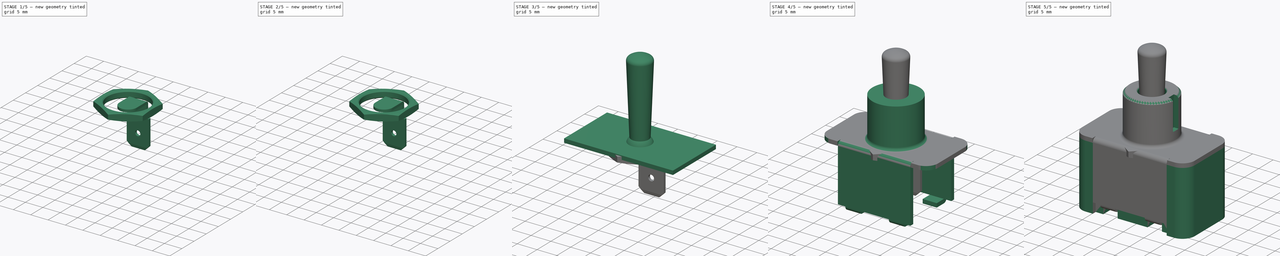
[diagram: build sequence overview — one tinted view per stage of 5, left to right]
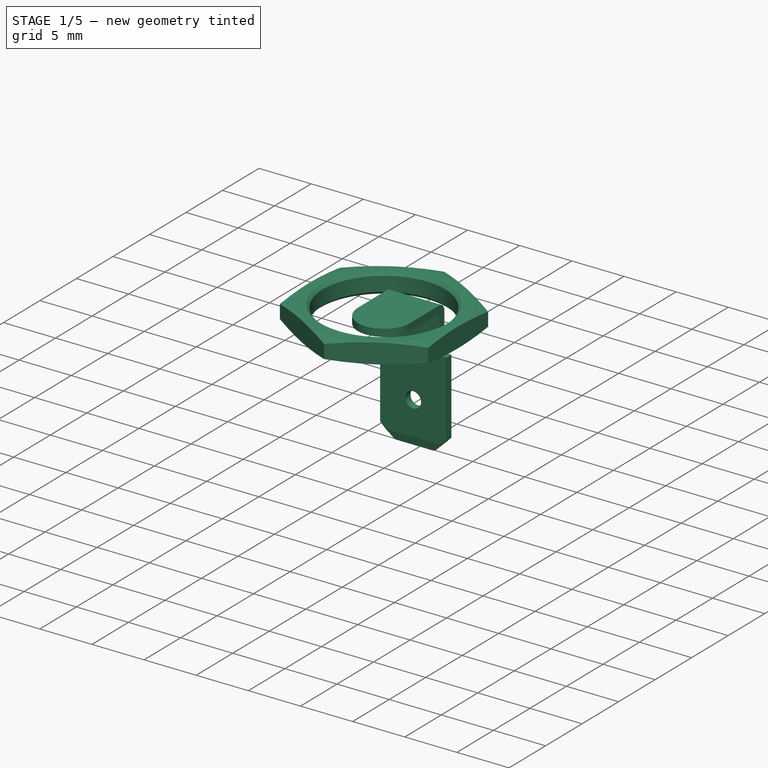
[diagram: stage 1 of 5 — iso view after this stage's code; geometry added in this stage tinted green]
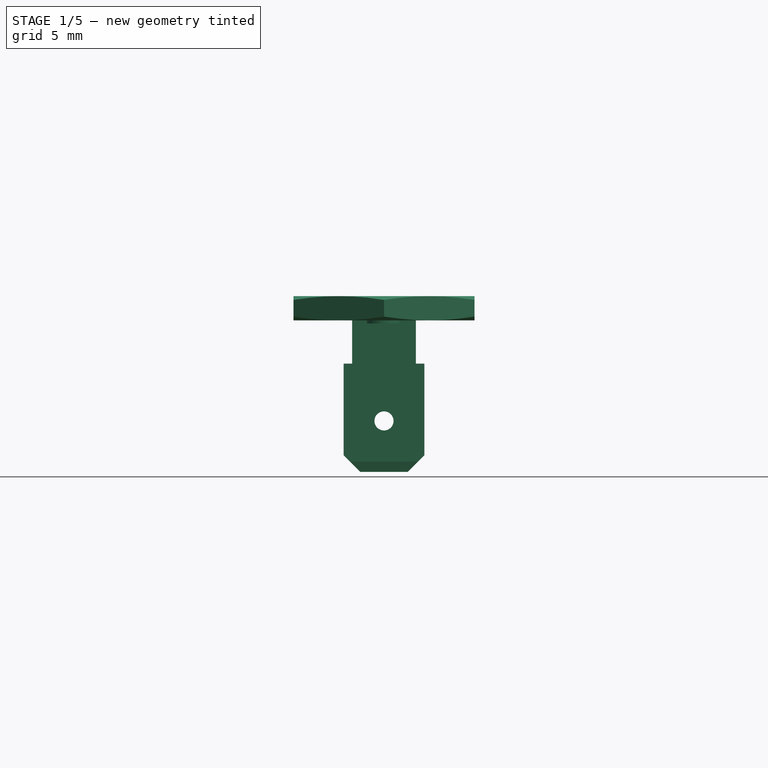
[diagram: stage 1 of 5 — front view after this stage's code; geometry added in this stage tinted green]
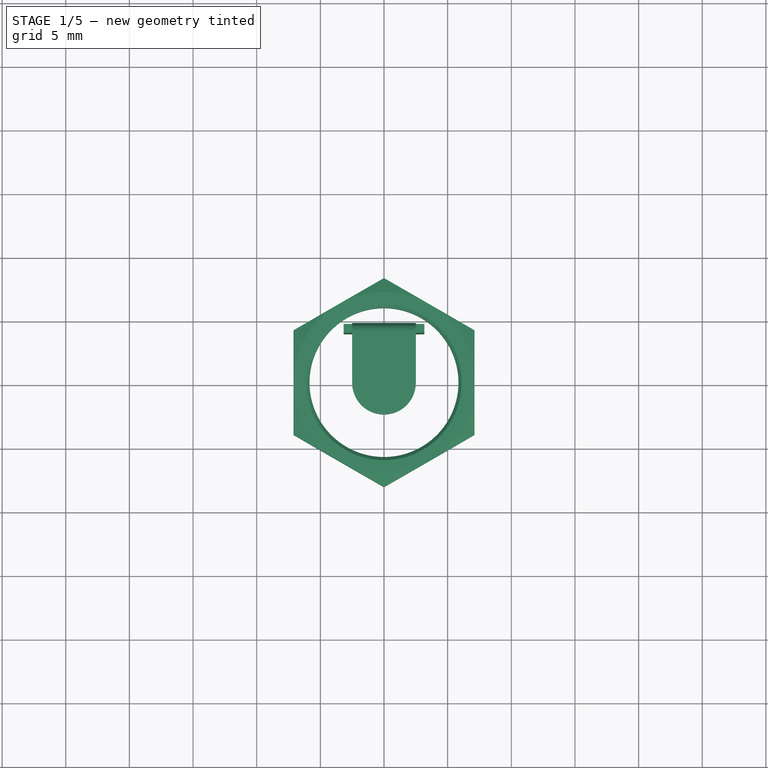
[diagram: stage 1 of 5 — top view after this stage's code; geometry added in this stage tinted green]
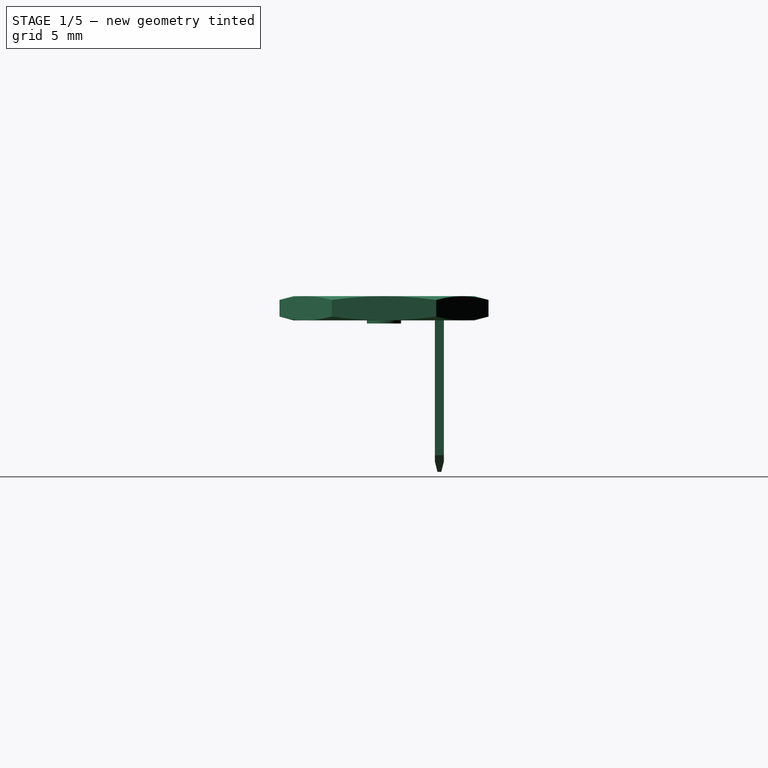
[diagram: stage 1 of 5 — right view after this stage's code; geometry added in this stage tinted green]
FCSTD DOCUMENT  (FreeCAD 0.20R29177 +426 (Git))
Label: Switch
License: All rights reserved
LicenseURL: http://en.wikipedia.org/wiki/All_rights_reserved
objects: Sketcher::SketchObject×24, PartDesign::Pad×11, PartDesign::Body×11, PartDesign::Fillet×8, PartDesign::Pocket×7, PartDesign::Chamfer×7, PartDesign::Revolution×6
note: 113 computed .brp shape members not serialized (recipe doc carries the construction recipe); baked Part::Feature solids carry a one-line shape summary decoded from their .brp

FEATURE [PartDesign::Body] Body007
  Group = -> [Sketch017,Revolution003,Sketch018,Pocket005,Chamfer004]
  Origin = -> Origin007
  Placement = pos=(0,0,9) rot=(0,0,1;0rad)
  Tip = -> Chamfer004
FEATURE [Sketcher::SketchObject] Sketch019
  FullyConstrained = true
  MapMode = 5
  Placement = pos=(0,0,0) rot=(1,0,0;1.5708rad)
  Support = -> [XZ_Plane008]
  sketch-geometry (5):
    g0: LineSegment StartX=5.85 StartY=0.95 StartZ=0 EndX=7.11 EndY=0.95 EndZ=0
    g1: LineSegment StartX=7.11 StartY=-0.95 StartZ=0 EndX=5.85 EndY=-0.95 EndZ=0
    g2: LineSegment StartX=5.85 StartY=-0.95 StartZ=0 EndX=5.85 EndY=0.95 EndZ=0
    g3: LineSegment StartX=7.11 StartY=0.95 StartZ=0 EndX=10.6554 EndY=1e-16 EndZ=0
    g4: LineSegment StartX=10.6554 StartY=1e-16 StartZ=0 EndX=7.11 EndY=-0.95 EndZ=0
  constraints (14):
    c: Coincident(g1,g2)
    c: Coincident(g2,g0)
    c: Horizontal(g0)
    c: Horizontal(g1)
    c: DistanceX(g-1,g0) = 5.85
    c: DistanceX(g-1,g0) = 7.11
    c: Symmetric(g0,g1,g-1)
    c: Coincident(g0,g3)
    c: PointOnObject(g3,g-1)
    c: Coincident(g3,g4)
    c: Equal(g0,g1)
    c: Angle(g3,g4) = 0.523599
    c: Coincident(g1,g4)
    c: DistanceY(g2,g2) = 1.9
FEATURE [PartDesign::Revolution] Revolution004
  Angle = 360
  Axis = (0,2e-16,1)
  Base = (0,0,0)
  Placement = pos=(0,0,0) rot=(1,0,0;1.5708rad)
  Profile = -> Sketch019
  ReferenceAxis = -> Sketch019 [V_Axis]
  Reversed = true
FEATURE [Sketcher::SketchObject] Sketch020
  FullyConstrained = false
  MapMode = 5
  Placement = pos=(0,6e-16,0.95) rot=(0,0,1;3.14159rad)
  Support = -> [Revolution004]
  sketch-geometry (8):
    g0: LineSegment StartX=0 StartY=8.20992 StartZ=0 EndX=-7.11 EndY=4.10496 EndZ=0
    g1: LineSegment StartX=-7.11 StartY=4.10496 StartZ=0 EndX=-7.11 EndY=-4.10496 EndZ=0
    g2: LineSegment StartX=-7.11 StartY=-4.10496 StartZ=0 EndX=-1.8e-15 EndY=-8.20992 EndZ=0
    g3: LineSegment StartX=-1.8e-15 StartY=-8.20992 StartZ=0 EndX=7.11 EndY=-4.10496 EndZ=0
    g4: LineSegment StartX=7.11 StartY=-4.10496 StartZ=0 EndX=7.11 EndY=4.10496 EndZ=0
    g5: LineSegment StartX=7.11 StartY=4.10496 StartZ=0 EndX=0 EndY=8.20992 EndZ=0
    g6: Circle CenterX=0 CenterY=0 CenterZ=0 NormalX=0 NormalY=0 NormalZ=1 AngleXU=0 Radius=8.20992
    g7: Circle CenterX=0 CenterY=0 CenterZ=0 NormalX=0 NormalY=0 NormalZ=1 AngleXU=0 Radius=11.7113
  constraints (17):
    c: Coincident(g0,g1)
    c: Coincident(g1,g2)
    c: Coincident(g2,g3)
    c: Coincident(g3,g4)
    c: Coincident(g4,g5)
    c: Coincident(g5,g0)
    c: Equal(g0, g1-g5) x5
    c: PointOnObject(g0,g6)
    c: PointOnObject(g1,g6)
    c: PointOnObject(g2,g6)
    c: PointOnObject(g3,g6)
    c: PointOnObject(g4,g6)
    c: PointOnObject(g5,g6)
    c: Coincident(g6,g-1)
    c: PointOnObject(g5,g-2)
    c: DistanceX(g0,g4) = 14.22
    c: Coincident(g7,g6)
FEATURE [PartDesign::Pocket] Pocket006
  BaseFeature = -> Revolution004
  Direction = (0,-2e-16,-1)
  Length = 5
  Length2 = 5
  Placement = pos=(0,0,0) rot=(1,0,0;1.5708rad)
  Profile = -> Sketch020
  ReferenceAxis = -> Sketch020 [N_Axis]
  Type = 0
FEATURE [PartDesign::Chamfer] Chamfer005
  Angle = 45
  Base = -> Pocket006 [Edge1,Edge8]
  BaseFeature = -> Pocket006
  ChamferType = 0
  FlipDirection = false
  Placement = pos=(0,0,0) rot=(1,0,0;1.5708rad)
  Size = 0.25
  Size2 = 1
  SupportTransform = false
  UseAllEdges = false
FEATURE [PartDesign::Body] Body008
  Group = -> [Sketch019,Revolution004,Sketch020,Pocket006,Chamfer005]
  Origin = -> Origin008
  Placement = pos=(0,0,6.3) rot=(0,0,-1;5.75959rad)
  Tip = -> Chamfer005
FEATURE [Sketcher::SketchObject] Sketch021
  FullyConstrained = true
  MapMode = 5
  Support = -> [XY_Plane009]
  sketch-geometry (5):
    g0: ArcOfCircle CenterX=0 CenterY=0 CenterZ=0 NormalX=0 NormalY=0 NormalZ=1 AngleXU=0 Radius=2.5 StartAngle=3.14159 EndAngle=6.28319
    g1: LineSegment StartX=2.5 StartY=-6e-16 StartZ=0 EndX=2.5 EndY=4.7 EndZ=0
    g2: LineSegment StartX=-2.5 StartY=4.7 StartZ=0 EndX=-2.5 EndY=0 EndZ=0
    g3: LineSegment StartX=-2.5 StartY=4.7 StartZ=0 EndX=2.5 EndY=4.7 EndZ=0
    g4: Circle CenterX=0 CenterY=0 CenterZ=0 NormalX=0 NormalY=0 NormalZ=1 AngleXU=0 Radius=1
  constraints (12):
    c: Tangent(g0,g1) = -1.5708
    c: Tangent(g2,g0) = -1.5708
    c: Coincident(g0,g-1)
    c: Vertical(g1)
    c: Coincident(g3,g2)
    c: Coincident(g3,g1)
    c: Horizontal(g3)
    c: Vertical(g2)
    c: DistanceX(g3,g3) = 5
    c: DistanceY(g1,g1) = 4.7
    c: Coincident(g4,g0)
    c: Diameter(g4) = 2
FEATURE [PartDesign::Pad] Pad009
  Direction = (0,0,1)
  Length = 0.7
  Length2 = 10
  Profile = -> Sketch021
  ReferenceAxis = -> Sketch021 [N_Axis]
  Reversed = true
  Type = 0
FEATURE [Sketcher::SketchObject] Sketch022
  ExternalGeometry = -> [Pad009]
  FullyConstrained = true
  MapMode = 5
  Placement = pos=(0,4.7,0) rot=(0,0.707107,0.707107;3.14159rad)
  Support = -> [Pad009]
  sketch-geometry (11):
    g0: LineSegment StartX=-2.5 StartY=-0.7 StartZ=0 EndX=2.5 EndY=-0.7 EndZ=0
    g1: LineSegment StartX=2.5 StartY=-0.7 StartZ=0 EndX=2.5 EndY=-4.35 EndZ=0
    g2: LineSegment StartX=-2.5 StartY=-4.35 StartZ=0 EndX=-2.5 EndY=-0.7 EndZ=0
    g3: LineSegment StartX=-3.175 StartY=-4.35 StartZ=0 EndX=-2.5 EndY=-4.35 EndZ=0
    g4: LineSegment StartX=3.175 StartY=-4.35 StartZ=0 EndX=3.175 EndY=-11.55 EndZ=0
    g5: LineSegment StartX=1.875 StartY=-12.85 StartZ=0 EndX=-1.875 EndY=-12.85 EndZ=0
    g6: LineSegment StartX=-3.175 StartY=-11.55 StartZ=0 EndX=-3.175 EndY=-4.35 EndZ=0
    g7: LineSegment StartX=2.5 StartY=-4.35 StartZ=0 EndX=3.175 EndY=-4.35 EndZ=0
    g8: LineSegment StartX=-3.175 StartY=-11.55 StartZ=0 EndX=-1.875 EndY=-12.85 EndZ=0
    g9: LineSegment StartX=3.175 StartY=-11.55 StartZ=0 EndX=1.875 EndY=-12.85 EndZ=0
    g10: Circle CenterX=0 CenterY=-8.85 CenterZ=0 NormalX=0 NormalY=0 NormalZ=1 AngleXU=0 Radius=0.75
  constraints (30):
    c: Coincident(g0,g1)
    c: Coincident(g2,g0)
    c: Vertical(g1)
    c: Vertical(g2)
    c: Coincident(g0,g-3)
    c: Coincident(g7,g4)
    c: Coincident(g6,g3)
    c: Horizontal(g3)
    c: Vertical(g4)
    c: Vertical(g6)
    c: Coincident(g1,g7)
    c: Coincident(g2,g3)
    c: Coincident(g0,g-3)
    c: Equal(g3,g7)
    c: Equal(g2,g1)
    c: Horizontal(g7)
    c: Coincident(g4,g9)
    c: Coincident(g5,g9)
    c: Coincident(g6,g8)
    c: Coincident(g5,g8)
    c: Symmetric(g5,g5,g-2)
    c: Equal(g8,g9)
    c: DistanceY(g5,g0) = 12.15
    c: Angle(g8,g6) = 2.35619
    c: DistanceX(g6,g4) = 6.35
    c: DistanceY(g9,g9) = 1.3
    c: PointOnObject(g10,g-2)
    c: Diameter(g10) = 1.5
    c: DistanceY(g5,g10) = 4
    c: DistanceY(g5,g4) = 8.5
FEATURE [PartDesign::Pad] Pad010
  BaseFeature = -> Pad009
  Direction = (0,1,-2e-16)
  Length = 0.7
  Length2 = 10
  Profile = -> Sketch022
  ReferenceAxis = -> Sketch022 [N_Axis]
  Refine = true
  Reversed = true
  Type = 0
FEATURE [PartDesign::Fillet] Fillet007
  Base = -> Pad010 [Edge6]
  BaseFeature = -> Pad010
  Radius = 0.7
  SupportTransform = false
  UseAllEdges = false
FEATURE [PartDesign::Chamfer] Chamfer006
  Angle = 45
  Base = -> Fillet007 [Edge27,Edge37]
  BaseFeature = -> Fillet007
  ChamferType = 1
  FlipDirection = false
  Size = 0.8
  Size2 = 0.2
  SupportTransform = false
  UseAllEdges = false
FEATURE [PartDesign::Body] Body009
  Group = -> [Sketch021,Pad009,Sketch022,Pad010,Fillet007,Chamfer006]
  Origin = -> Origin009
  Placement = pos=(-8.25,0,-13.12) rot=(0,0,1;1.5708rad)
  Tip = -> Chamfer006
FEATURE [Sketcher::SketchObject] Sketch023
  FullyConstrained = true
  MapMode = 5
  Placement = pos=(0,0,0) rot=(0.57735,0.57735,0.57735;2.0944rad)
  Support = -> [YZ_Plane010]
  sketch-geometry (7):
    g0: LineSegment StartX=0 StartY=0 StartZ=0 EndX=1 EndY=0 EndZ=0
    g1: LineSegment StartX=1 StartY=0 StartZ=0 EndX=1 EndY=-0.7 EndZ=0
    g2: LineSegment StartX=1.35 StartY=-1.2 StartZ=0 EndX=0.7 EndY=-1.2 EndZ=0
    g3: LineSegment StartX=0 StartY=-0.5 StartZ=0 EndX=0 EndY=0 EndZ=0
    g4: LineSegment StartX=1 StartY=-0.7 StartZ=0 EndX=1.35 EndY=-0.7 EndZ=0
    g5: LineSegment StartX=1.35 StartY=-0.7 StartZ=0 EndX=1.35 EndY=-1.2 EndZ=0
    g6: LineSegment StartX=0.7 StartY=-1.2 StartZ=0 EndX=0 EndY=-0.5 EndZ=0
  constraints (20):
    c: Coincident(g0,g1)
    c: Coincident(g3,g0)
    c: Horizontal(g0)
    c: Horizontal(g2)
    c: Vertical(g1)
    c: Vertical(g3)
    c: Coincident(g0,g-1)
    c: Coincident(g4,g5)
    c: Vertical(g5)
    c: Horizontal(g4)
    c: Coincident(g1,g4)
    c: Coincident(g2,g5)
    c: DistanceX(g0,g0) = 1
    c: DistanceY(g4,g0) = 0.7
    c: DistanceY(g5,g5) = 0.5
    c: DistanceX(g0,g4) = 0.35
    c: Coincident(g3,g6)
    c: Coincident(g2,g6)
    c: Angle(g6,g3) = 2.35619
    c: DistanceX(g3,g2) = 0.7
FEATURE [PartDesign::Revolution] Revolution005
  Angle = 360
  Axis = (-2e-16,3e-16,1)
  Base = (0,0,0)
  Placement = pos=(0,0,0) rot=(0.57735,0.57735,0.57735;2.0944rad)
  Profile = -> Sketch023
  ReferenceAxis = -> Sketch023 [V_Axis]
  Reversed = true
FEATURE [PartDesign::Body] Body010
  Group = -> [Sketch023,Revolution005]
  Origin = -> Origin010
  Placement = pos=(-8.25,2e-16,-13.12) rot=(0,0,1;0rad)
  Tip = -> Revolution005
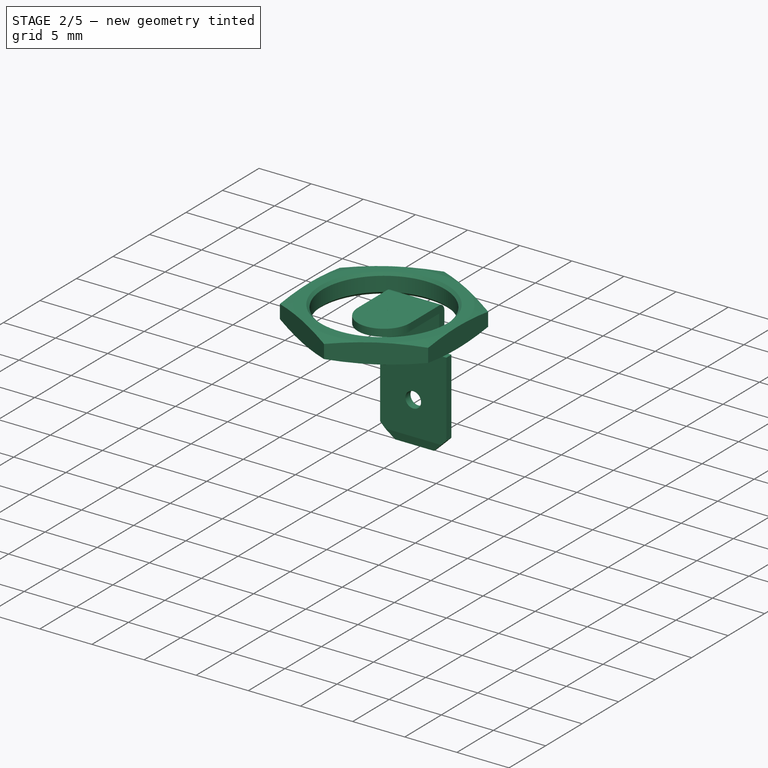
[diagram: stage 2 of 5 — iso view after this stage's code; geometry added in this stage tinted green]
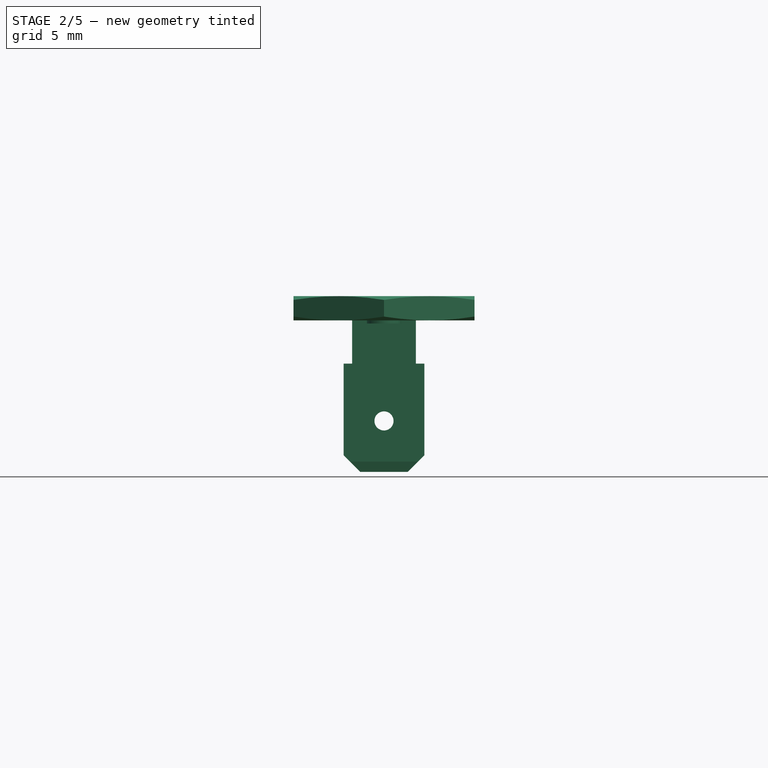
[diagram: stage 2 of 5 — front view after this stage's code; geometry added in this stage tinted green]
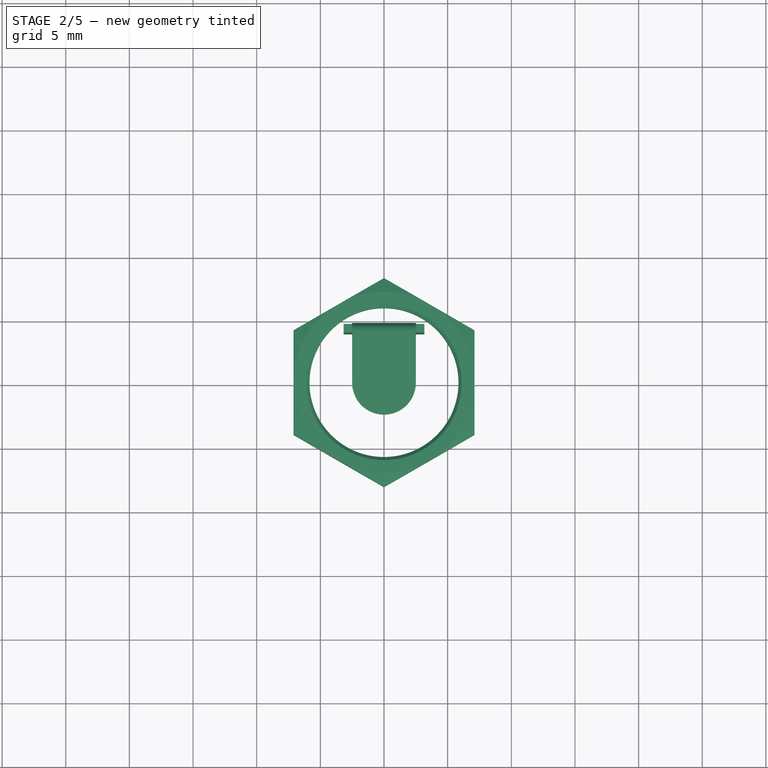
[diagram: stage 2 of 5 — top view after this stage's code; geometry added in this stage tinted green]
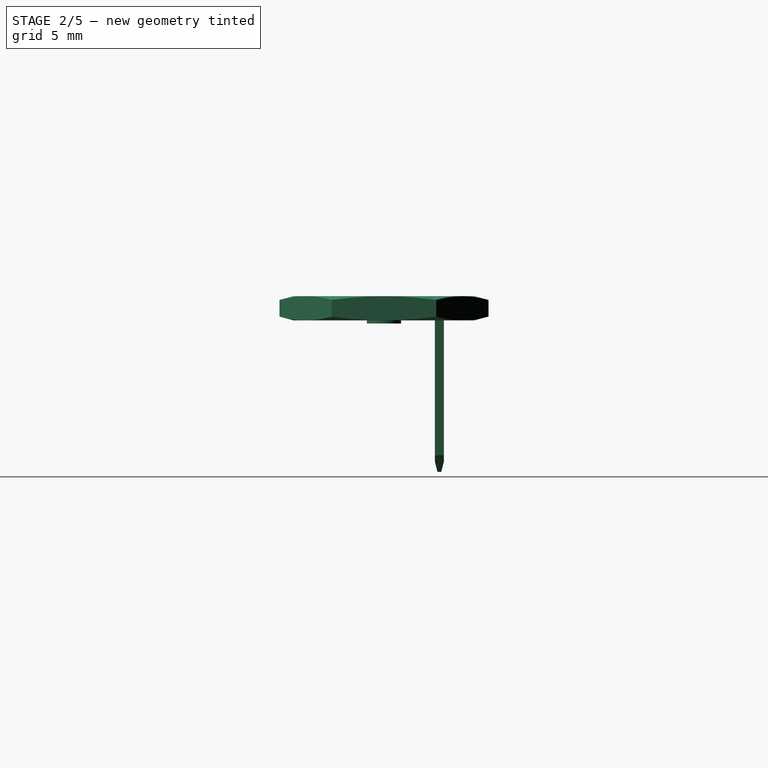
[diagram: stage 2 of 5 — right view after this stage's code; geometry added in this stage tinted green]
FEATURE [PartDesign::Body] Body004
  Group = -> [Sketch013,Revolution001]
  Origin = -> Origin004
  Placement = pos=(0,0,-13.12) rot=(0,0,1;0rad)
  Tip = -> Revolution001
FEATURE [Sketcher::SketchObject] Sketch014
  FullyConstrained = true
  MapMode = 5
  Support = -> [XY_Plane005]
  sketch-geometry (5):
    g0: ArcOfCircle CenterX=0 CenterY=0 CenterZ=0 NormalX=0 NormalY=0 NormalZ=1 AngleXU=0 Radius=2.5 StartAngle=3.14159 EndAngle=6.28319
    g1: LineSegment StartX=2.5 StartY=-6e-16 StartZ=0 EndX=2.5 EndY=4.7 EndZ=0
    g2: LineSegment StartX=-2.5 StartY=4.7 StartZ=0 EndX=-2.5 EndY=0 EndZ=0
    g3: LineSegment StartX=-2.5 StartY=4.7 StartZ=0 EndX=2.5 EndY=4.7 EndZ=0
    g4: Circle CenterX=0 CenterY=0 CenterZ=0 NormalX=0 NormalY=0 NormalZ=1 AngleXU=0 Radius=1
  constraints (12):
    c: Tangent(g0,g1) = -1.5708
    c: Tangent(g2,g0) = -1.5708
    c: Coincident(g0,g-1)
    c: Vertical(g1)
    c: Coincident(g3,g2)
    c: Coincident(g3,g1)
    c: Horizontal(g3)
    c: Vertical(g2)
    c: DistanceX(g3,g3) = 5
    c: DistanceY(g1,g1) = 4.7
    c: Coincident(g4,g0)
    c: Diameter(g4) = 2
FEATURE [PartDesign::Pad] Pad007
  Direction = (0,0,1)
  Length = 0.7
  Length2 = 10
  Profile = -> Sketch014
  ReferenceAxis = -> Sketch014 [N_Axis]
  Reversed = true
  Type = 0
FEATURE [Sketcher::SketchObject] Sketch015
  ExternalGeometry = -> [Pad007]
  FullyConstrained = true
  MapMode = 5
  Placement = pos=(0,4.7,0) rot=(0,0.707107,0.707107;3.14159rad)
  Support = -> [Pad007]
  sketch-geometry (11):
    g0: LineSegment StartX=-2.5 StartY=-0.7 StartZ=0 EndX=2.5 EndY=-0.7 EndZ=0
    g1: LineSegment StartX=2.5 StartY=-0.7 StartZ=0 EndX=2.5 EndY=-4.35 EndZ=0
    g2: LineSegment StartX=-2.5 StartY=-4.35 StartZ=0 EndX=-2.5 EndY=-0.7 EndZ=0
    g3: LineSegment StartX=-3.175 StartY=-4.35 StartZ=0 EndX=-2.5 EndY=-4.35 EndZ=0
    g4: LineSegment StartX=3.175 StartY=-4.35 StartZ=0 EndX=3.175 EndY=-11.55 EndZ=0
    g5: LineSegment StartX=1.875 StartY=-12.85 StartZ=0 EndX=-1.875 EndY=-12.85 EndZ=0
    g6: LineSegment StartX=-3.175 StartY=-11.55 StartZ=0 EndX=-3.175 EndY=-4.35 EndZ=0
    g7: LineSegment StartX=2.5 StartY=-4.35 StartZ=0 EndX=3.175 EndY=-4.35 EndZ=0
    g8: LineSegment StartX=-3.175 StartY=-11.55 StartZ=0 EndX=-1.875 EndY=-12.85 EndZ=0
    g9: LineSegment StartX=3.175 StartY=-11.55 StartZ=0 EndX=1.875 EndY=-12.85 EndZ=0
    g10: Circle CenterX=0 CenterY=-8.85 CenterZ=0 NormalX=0 NormalY=0 NormalZ=1 AngleXU=0 Radius=0.75
  constraints (30):
    c: Coincident(g0,g1)
    c: Coincident(g2,g0)
    c: Vertical(g1)
    c: Vertical(g2)
    c: Coincident(g0,g-3)
    c: Coincident(g7,g4)
    c: Coincident(g6,g3)
    c: Horizontal(g3)
    c: Vertical(g4)
    c: Vertical(g6)
    c: Coincident(g1,g7)
    c: Coincident(g2,g3)
    c: Coincident(g0,g-3)
    c: Equal(g3,g7)
    c: Equal(g2,g1)
    c: Horizontal(g7)
    c: Coincident(g4,g9)
    c: Coincident(g5,g9)
    c: Coincident(g6,g8)
    c: Coincident(g5,g8)
    c: Symmetric(g5,g5,g-2)
    c: Equal(g8,g9)
    c: DistanceY(g5,g0) = 12.15
    c: Angle(g8,g6) = 2.35619
    c: DistanceX(g6,g4) = 6.35
    c: DistanceY(g9,g9) = 1.3
    c: PointOnObject(g10,g-2)
    c: Diameter(g10) = 1.5
    c: DistanceY(g5,g10) = 4
    c: DistanceY(g5,g4) = 8.5
FEATURE [PartDesign::Pad] Pad008
  BaseFeature = -> Pad007
  Direction = (0,1,-2e-16)
  Length = 0.7
  Length2 = 10
  Profile = -> Sketch015
  ReferenceAxis = -> Sketch015 [N_Axis]
  Refine = true
  Reversed = true
  Type = 0
FEATURE [PartDesign::Fillet] Fillet006
  Base = -> Pad008 [Edge6]
  BaseFeature = -> Pad008
  Radius = 0.7
  SupportTransform = false
  UseAllEdges = false
FEATURE [PartDesign::Chamfer] Chamfer003
  Angle = 45
  Base = -> Fillet006 [Edge27,Edge37]
  BaseFeature = -> Fillet006
  ChamferType = 1
  FlipDirection = false
  Size = 0.8
  Size2 = 0.2
  SupportTransform = false
  UseAllEdges = false
FEATURE [PartDesign::Body] Body005
  Group = -> [Sketch014,Pad007,Sketch015,Pad008,Fillet006,Chamfer003]
  Origin = -> Origin005
  Placement = pos=(8.25,0,-13.12) rot=(0,0,1;4.71239rad)
  Tip = -> Chamfer003
FEATURE [Sketcher::SketchObject] Sketch016
  FullyConstrained = true
  MapMode = 5
  Placement = pos=(0,0,0) rot=(0.57735,0.57735,0.57735;2.0944rad)
  Support = -> [YZ_Plane006]
  sketch-geometry (7):
    g0: LineSegment StartX=0 StartY=0 StartZ=0 EndX=1 EndY=0 EndZ=0
    g1: LineSegment StartX=1 StartY=0 StartZ=0 EndX=1 EndY=-0.7 EndZ=0
    g2: LineSegment StartX=1.35 StartY=-1.2 StartZ=0 EndX=0.7 EndY=-1.2 EndZ=0
    g3: LineSegment StartX=0 StartY=-0.5 StartZ=0 EndX=0 EndY=0 EndZ=0
    g4: LineSegment StartX=1 StartY=-0.7 StartZ=0 EndX=1.35 EndY=-0.7 EndZ=0
    g5: LineSegment StartX=1.35 StartY=-0.7 StartZ=0 EndX=1.35 EndY=-1.2 EndZ=0
    g6: LineSegment StartX=0.7 StartY=-1.2 StartZ=0 EndX=0 EndY=-0.5 EndZ=0
  constraints (20):
    c: Coincident(g0,g1)
    c: Coincident(g3,g0)
    c: Horizontal(g0)
    c: Horizontal(g2)
    c: Vertical(g1)
    c: Vertical(g3)
    c: Coincident(g0,g-1)
    c: Coincident(g4,g5)
    c: Vertical(g5)
    c: Horizontal(g4)
    c: Coincident(g1,g4)
    c: Coincident(g2,g5)
    c: DistanceX(g0,g0) = 1
    c: DistanceY(g4,g0) = 0.7
    c: DistanceY(g5,g5) = 0.5
    c: DistanceX(g0,g4) = 0.35
    c: Coincident(g3,g6)
    c: Coincident(g2,g6)
    c: Angle(g6,g3) = 2.35619
    c: DistanceX(g3,g2) = 0.7
FEATURE [PartDesign::Revolution] Revolution002
  Angle = 360
  Axis = (-2e-16,3e-16,1)
  Base = (0,0,0)
  Placement = pos=(0,0,0) rot=(0.57735,0.57735,0.57735;2.0944rad)
  Profile = -> Sketch016
  ReferenceAxis = -> Sketch016 [V_Axis]
  Reversed = true
FEATURE [PartDesign::Body] Body006
  Group = -> [Sketch016,Revolution002]
  Origin = -> Origin006
  Placement = pos=(8.25,0,-13.12) rot=(0,0,1;0rad)
  Tip = -> Revolution002
FEATURE [Sketcher::SketchObject] Sketch017
  FullyConstrained = true
  MapMode = 5
  Placement = pos=(0,0,0) rot=(1,0,0;1.5708rad)
  Support = -> [XZ_Plane007]
  sketch-geometry (5):
    g0: LineSegment StartX=5.85 StartY=0.95 StartZ=0 EndX=7.11 EndY=0.95 EndZ=0
    g1: LineSegment StartX=7.11 StartY=-0.95 StartZ=0 EndX=5.85 EndY=-0.95 EndZ=0
    g2: LineSegment StartX=5.85 StartY=-0.95 StartZ=0 EndX=5.85 EndY=0.95 EndZ=0
    g3: LineSegment StartX=7.11 StartY=0.95 StartZ=0 EndX=10.6554 EndY=1e-16 EndZ=0
    g4: LineSegment StartX=10.6554 StartY=1e-16 StartZ=0 EndX=7.11 EndY=-0.95 EndZ=0
  constraints (14):
    c: Coincident(g1,g2)
    c: Coincident(g2,g0)
    c: Horizontal(g0)
    c: Horizontal(g1)
    c: DistanceX(g-1,g0) = 5.85
    c: DistanceX(g-1,g0) = 7.11
    c: Symmetric(g0,g1,g-1)
    c: Coincident(g0,g3)
    c: PointOnObject(g3,g-1)
    c: Coincident(g3,g4)
    c: Equal(g0,g1)
    c: Angle(g3,g4) = 0.523599
    c: Coincident(g1,g4)
    c: DistanceY(g2,g2) = 1.9
FEATURE [PartDesign::Revolution] Revolution003
  Angle = 360
  Axis = (0,2e-16,1)
  Base = (0,0,0)
  Placement = pos=(0,0,0) rot=(1,0,0;1.5708rad)
  Profile = -> Sketch017
  ReferenceAxis = -> Sketch017 [V_Axis]
  Reversed = true
FEATURE [Sketcher::SketchObject] Sketch018
  FullyConstrained = false
  MapMode = 5
  Placement = pos=(0,2e-16,0.95) rot=(0,0,1;3.14159rad)
  Support = -> [Revolution003]
  sketch-geometry (8):
    g0: LineSegment StartX=0 StartY=8.20992 StartZ=0 EndX=-7.11 EndY=4.10496 EndZ=0
    g1: LineSegment StartX=-7.11 StartY=4.10496 StartZ=0 EndX=-7.11 EndY=-4.10496 EndZ=0
    g2: LineSegment StartX=-7.11 StartY=-4.10496 StartZ=0 EndX=-1.8e-15 EndY=-8.20992 EndZ=0
    g3: LineSegment StartX=-1.8e-15 StartY=-8.20992 StartZ=0 EndX=7.11 EndY=-4.10496 EndZ=0
    g4: LineSegment StartX=7.11 StartY=-4.10496 StartZ=0 EndX=7.11 EndY=4.10496 EndZ=0
    g5: LineSegment StartX=7.11 StartY=4.10496 StartZ=0 EndX=0 EndY=8.20992 EndZ=0
    g6: Circle CenterX=0 CenterY=0 CenterZ=0 NormalX=0 NormalY=0 NormalZ=1 AngleXU=0 Radius=8.20992
    g7: Circle CenterX=0 CenterY=0 CenterZ=0 NormalX=0 NormalY=0 NormalZ=1 AngleXU=0 Radius=11.7113
  constraints (17):
    c: Coincident(g0,g1)
    c: Coincident(g1,g2)
    c: Coincident(g2,g3)
    c: Coincident(g3,g4)
    c: Coincident(g4,g5)
    c: Coincident(g5,g0)
    c: Equal(g0, g1-g5) x5
    c: PointOnObject(g0,g6)
    c: PointOnObject(g1,g6)
    c: PointOnObject(g2,g6)
    c: PointOnObject(g3,g6)
    c: PointOnObject(g4,g6)
    c: PointOnObject(g5,g6)
    c: Coincident(g6,g-1)
    c: PointOnObject(g5,g-2)
    c: DistanceX(g0,g4) = 14.22
    c: Coincident(g7,g6)
FEATURE [PartDesign::Pocket] Pocket005
  BaseFeature = -> Revolution003
  Direction = (0,-2e-16,-1)
  Length = 5
  Length2 = 5
  Placement = pos=(0,0,0) rot=(1,0,0;1.5708rad)
  Profile = -> Sketch018
  ReferenceAxis = -> Sketch018 [N_Axis]
  Type = 0
FEATURE [PartDesign::Chamfer] Chamfer004
  Angle = 45
  Base = -> Pocket005 [Edge1,Edge8]
  BaseFeature = -> Pocket005
  ChamferType = 0
  FlipDirection = false
  Placement = pos=(0,0,0) rot=(1,0,0;1.5708rad)
  Size = 0.25
  Size2 = 1
  SupportTransform = false
  UseAllEdges = false
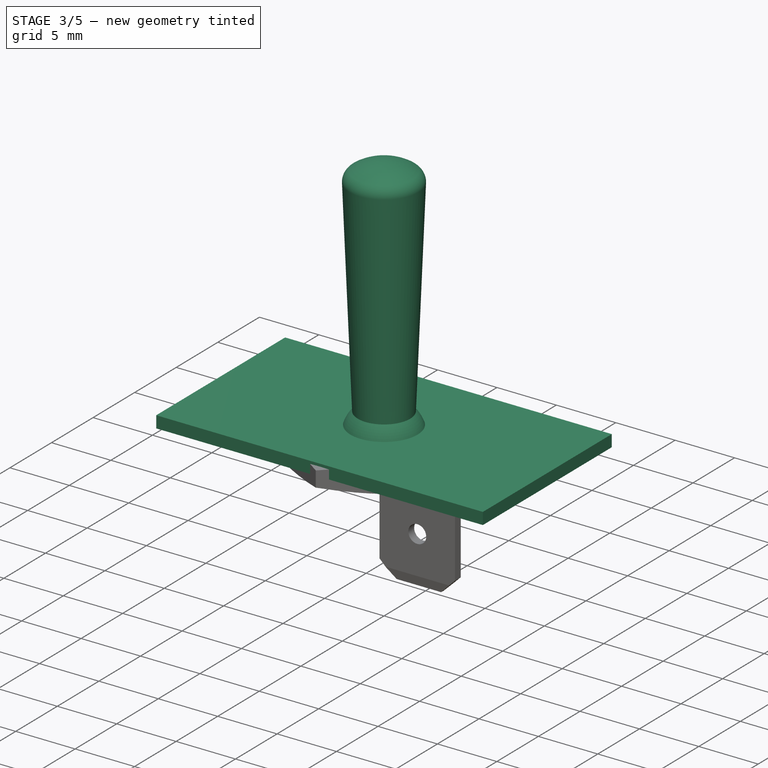
[diagram: stage 3 of 5 — iso view after this stage's code; geometry added in this stage tinted green]
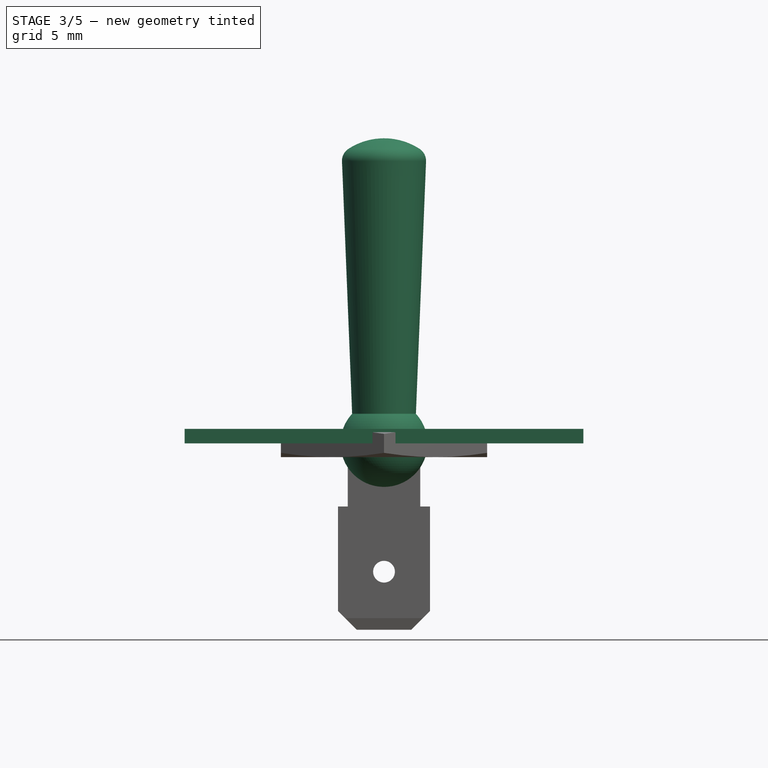
[diagram: stage 3 of 5 — front view after this stage's code; geometry added in this stage tinted green]
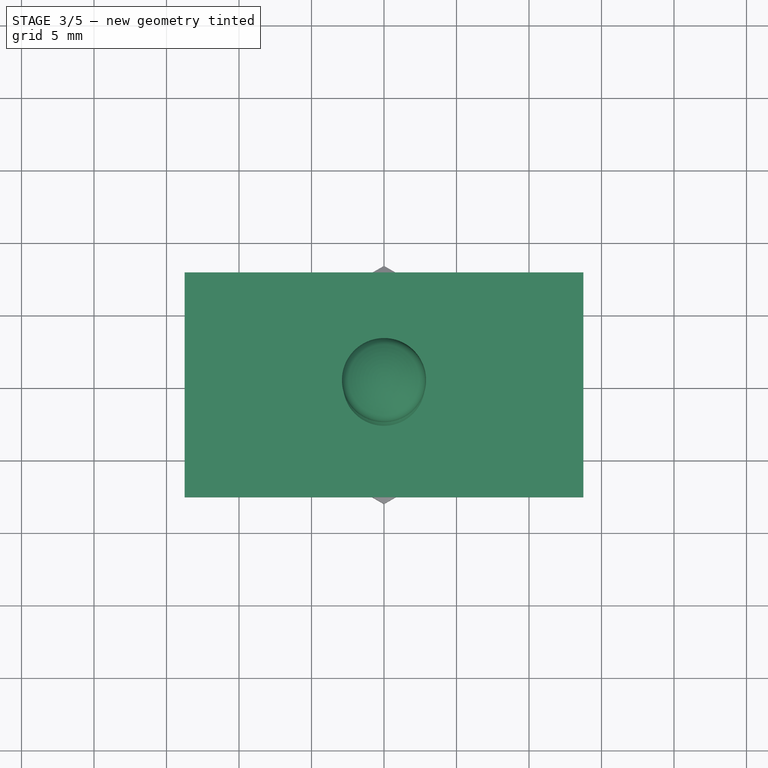
[diagram: stage 3 of 5 — top view after this stage's code; geometry added in this stage tinted green]
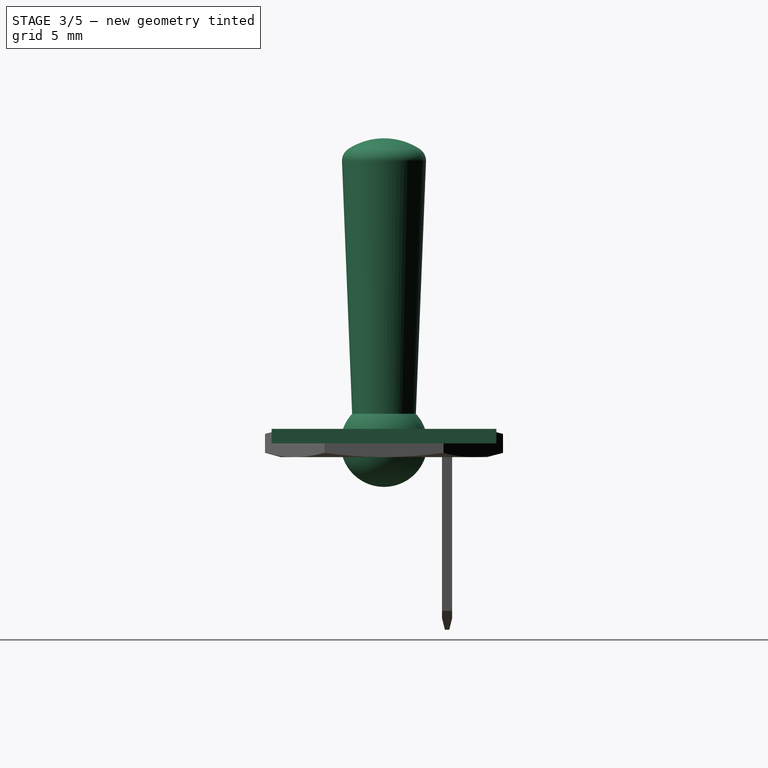
[diagram: stage 3 of 5 — right view after this stage's code; geometry added in this stage tinted green]
FEATURE [PartDesign::Body] Body
  Group = -> [Sketch,Pad,Fillet,Sketch001,Pocket,Sketch002,Pocket001]
  Origin = -> Origin
  Tip = -> Pocket001
FEATURE [Sketcher::SketchObject] Sketch003
  FullyConstrained = true
  MapMode = 5
  Support = -> [XY_Plane001]
  sketch-geometry (4):
    g0: LineSegment StartX=-13.75 StartY=7.75 StartZ=0 EndX=13.75 EndY=7.75 EndZ=0
    g1: LineSegment StartX=13.75 StartY=7.75 StartZ=0 EndX=13.75 EndY=-7.75 EndZ=0
    g2: LineSegment StartX=13.75 StartY=-7.75 StartZ=0 EndX=-13.75 EndY=-7.75 EndZ=0
    g3: LineSegment StartX=-13.75 StartY=-7.75 StartZ=0 EndX=-13.75 EndY=7.75 EndZ=0
  constraints (11):
    c: Coincident(g0,g1)
    c: Coincident(g1,g2)
    c: Coincident(g2,g3)
    c: Coincident(g3,g0)
    c: Horizontal(g0)
    c: Horizontal(g2)
    c: Vertical(g1)
    c: Vertical(g3)
    c: Symmetric(g0,g1,g-1)
    c: DistanceX(g0,g0) = 27.5
    c: DistanceY(g3,g3) = 15.5
FEATURE [PartDesign::Pad] Pad001
  Direction = (0,0,1)
  Length = 1
  Length2 = 10
  Profile = -> Sketch003
  ReferenceAxis = -> Sketch003 [N_Axis]
  Type = 0
FEATURE [PartDesign::Body] Body001
  Group = -> [Sketch003,Pad001,Fillet001,Sketch004,Pad002,Sketch005,Pocket002,Fillet002,Sketch006,Pad003,Fillet003,Sketch007,Pad004,Fillet004,Chamfer,Sketch008,Pocket003,Sketch009,Pocket004,Chamfer001]
  Origin = -> Origin001
  Tip = -> Chamfer001
FEATURE [Sketcher::SketchObject] Sketch010
  FullyConstrained = true
  MapMode = 5
  Placement = pos=(0,0,0) rot=(1,0,0;1.5708rad)
  Support = -> [XZ_Plane002]
  sketch-geometry (6):
    g0: ArcOfCircle CenterX=0 CenterY=0 CenterZ=0 NormalX=0 NormalY=0 NormalZ=1 AngleXU=0 Radius=3 StartAngle=4.71239 EndAngle=7.03077
    g1: LineSegment StartX=2.2 StartY=2.03961 StartZ=0 EndX=2.89919 EndY=19.4388 EndZ=0
    g2: ArcOfCircle CenterX=0 CenterY=16.5396 CenterZ=0 NormalX=0 NormalY=0 NormalZ=1 AngleXU=0 Radius=4.5 StartAngle=0.996961 EndAngle=1.5708
    g3: ArcOfCircle CenterX=1.9 CenterY=19.479 CenterZ=0 NormalX=0 NormalY=0 NormalZ=1 AngleXU=0 Radius=1 StartAngle=6.24302 EndAngle=7.28015
    g4: LineSegment StartX=0 StartY=19.479 StartZ=0 EndX=2.9 EndY=19.479 EndZ=0
    g5: LineSegment StartX=-6e-16 StartY=21.0396 StartZ=0 EndX=-6e-16 EndY=-3 EndZ=0
  constraints (19):
    c: PointOnObject(g2,g-2)
    c: Tangent(g2,g3) = -1.5708
    c: Tangent(g1,g3) = -1.5708
    c: PointOnObject(g4,g-2)
    c: PointOnObject(g4,g3)
    c: Horizontal(g4)
    c: PointOnObject(g3,g4)
    c: DistanceX(g4,g4) = 2.9
    c: PointOnObject(g2,g-2)
    c: Coincident(g5,g2)
    c: Coincident(g5,g0)
    c: Vertical(g5)
    c: Coincident(g0,g1)
    c: DistanceY(g0,g2) = 19
    c: DistanceX(g0,g0) = 2.2
    c: Radius(g0) = 3
    c: Coincident(g0,g-1)
    c: Radius(g2) = 4.5
    c: Radius(g3) = 1
FEATURE [PartDesign::Revolution] Revolution
  Angle = 360
  Axis = (0,2e-16,1)
  Base = (0,0,0)
  Placement = pos=(0,0,0) rot=(1,0,0;1.5708rad)
  Profile = -> Sketch010
  ReferenceAxis = -> Sketch010 [V_Axis]
  Reversed = true
FEATURE [PartDesign::Body] Body002
  Group = -> [Sketch010,Revolution]
  Origin = -> Origin002
  Placement = pos=(0,0,9) rot=(0,-1,0;-0.349066rad)
  Tip = -> Revolution
FEATURE [Sketcher::SketchObject] Sketch011
  FullyConstrained = true
  MapMode = 5
  Support = -> [XY_Plane003]
  sketch-geometry (5):
    g0: ArcOfCircle CenterX=0 CenterY=0 CenterZ=0 NormalX=0 NormalY=0 NormalZ=1 AngleXU=0 Radius=2.5 StartAngle=3.14159 EndAngle=6.28319
    g1: LineSegment StartX=2.5 StartY=-6e-16 StartZ=0 EndX=2.5 EndY=4.7 EndZ=0
    g2: LineSegment StartX=-2.5 StartY=4.7 StartZ=0 EndX=-2.5 EndY=0 EndZ=0
    g3: LineSegment StartX=-2.5 StartY=4.7 StartZ=0 EndX=2.5 EndY=4.7 EndZ=0
    g4: Circle CenterX=0 CenterY=0 CenterZ=0 NormalX=0 NormalY=0 NormalZ=1 AngleXU=0 Radius=1
  constraints (12):
    c: Tangent(g0,g1) = -1.5708
    c: Tangent(g2,g0) = -1.5708
    c: Coincident(g0,g-1)
    c: Vertical(g1)
    c: Coincident(g3,g2)
    c: Coincident(g3,g1)
    c: Horizontal(g3)
    c: Vertical(g2)
    c: DistanceX(g3,g3) = 5
    c: DistanceY(g1,g1) = 4.7
    c: Coincident(g4,g0)
    c: Diameter(g4) = 2
FEATURE [PartDesign::Pad] Pad005
  Direction = (0,0,1)
  Length = 0.7
  Length2 = 10
  Profile = -> Sketch011
  ReferenceAxis = -> Sketch011 [N_Axis]
  Reversed = true
  Type = 0
FEATURE [Sketcher::SketchObject] Sketch012
  ExternalGeometry = -> [Pad005]
  FullyConstrained = true
  MapMode = 5
  Placement = pos=(0,4.7,0) rot=(0,0.707107,0.707107;3.14159rad)
  Support = -> [Pad005]
  sketch-geometry (11):
    g0: LineSegment StartX=-2.5 StartY=-0.7 StartZ=0 EndX=2.5 EndY=-0.7 EndZ=0
    g1: LineSegment StartX=2.5 StartY=-0.7 StartZ=0 EndX=2.5 EndY=-4.35 EndZ=0
    g2: LineSegment StartX=-2.5 StartY=-4.35 StartZ=0 EndX=-2.5 EndY=-0.7 EndZ=0
    g3: LineSegment StartX=-3.175 StartY=-4.35 StartZ=0 EndX=-2.5 EndY=-4.35 EndZ=0
    g4: LineSegment StartX=3.175 StartY=-4.35 StartZ=0 EndX=3.175 EndY=-11.55 EndZ=0
    g5: LineSegment StartX=1.875 StartY=-12.85 StartZ=0 EndX=-1.875 EndY=-12.85 EndZ=0
    g6: LineSegment StartX=-3.175 StartY=-11.55 StartZ=0 EndX=-3.175 EndY=-4.35 EndZ=0
    g7: LineSegment StartX=2.5 StartY=-4.35 StartZ=0 EndX=3.175 EndY=-4.35 EndZ=0
    g8: LineSegment StartX=-3.175 StartY=-11.55 StartZ=0 EndX=-1.875 EndY=-12.85 EndZ=0
    g9: LineSegment StartX=3.175 StartY=-11.55 StartZ=0 EndX=1.875 EndY=-12.85 EndZ=0
    g10: Circle CenterX=0 CenterY=-8.85 CenterZ=0 NormalX=0 NormalY=0 NormalZ=1 AngleXU=0 Radius=0.75
  constraints (30):
    c: Coincident(g0,g1)
    c: Coincident(g2,g0)
    c: Vertical(g1)
    c: Vertical(g2)
    c: Coincident(g0,g-3)
    c: Coincident(g7,g4)
    c: Coincident(g6,g3)
    c: Horizontal(g3)
    c: Vertical(g4)
    c: Vertical(g6)
    c: Coincident(g1,g7)
    c: Coincident(g2,g3)
    c: Coincident(g0,g-3)
    c: Equal(g3,g7)
    c: Equal(g2,g1)
    c: Horizontal(g7)
    c: Coincident(g4,g9)
    c: Coincident(g5,g9)
    c: Coincident(g6,g8)
    c: Coincident(g5,g8)
    c: Symmetric(g5,g5,g-2)
    c: Equal(g8,g9)
    c: DistanceY(g5,g0) = 12.15
    c: Angle(g8,g6) = 2.35619
    c: DistanceX(g6,g4) = 6.35
    c: DistanceY(g9,g9) = 1.3
    c: PointOnObject(g10,g-2)
    c: Diameter(g10) = 1.5
    c: DistanceY(g5,g10) = 4
    c: DistanceY(g5,g4) = 8.5
FEATURE [PartDesign::Pad] Pad006
  BaseFeature = -> Pad005
  Direction = (0,1,-2e-16)
  Length = 0.7
  Length2 = 10
  Profile = -> Sketch012
  ReferenceAxis = -> Sketch012 [N_Axis]
  Refine = true
  Reversed = true
  Type = 0
FEATURE [PartDesign::Fillet] Fillet005
  Base = -> Pad006 [Edge6]
  BaseFeature = -> Pad006
  Radius = 0.7
  SupportTransform = false
  UseAllEdges = false
FEATURE [PartDesign::Chamfer] Chamfer002
  Angle = 45
  Base = -> Fillet005 [Edge27,Edge37]
  BaseFeature = -> Fillet005
  ChamferType = 1
  FlipDirection = false
  Size = 0.8
  Size2 = 0.2
  SupportTransform = false
  UseAllEdges = false
FEATURE [PartDesign::Body] Body003
  Group = -> [Sketch011,Pad005,Sketch012,Pad006,Fillet005,Chamfer002]
  Origin = -> Origin003
  Placement = pos=(0,0,-13.12) rot=(0,0,1;0rad)
  Tip = -> Chamfer002
FEATURE [Sketcher::SketchObject] Sketch013
  FullyConstrained = true
  MapMode = 5
  Placement = pos=(0,0,0) rot=(0.57735,0.57735,0.57735;2.0944rad)
  Support = -> [YZ_Plane004]
  sketch-geometry (7):
    g0: LineSegment StartX=0 StartY=0 StartZ=0 EndX=1 EndY=0 EndZ=0
    g1: LineSegment StartX=1 StartY=0 StartZ=0 EndX=1 EndY=-0.7 EndZ=0
    g2: LineSegment StartX=1.35 StartY=-1.2 StartZ=0 EndX=0.7 EndY=-1.2 EndZ=0
    g3: LineSegment StartX=0 StartY=-0.5 StartZ=0 EndX=0 EndY=0 EndZ=0
    g4: LineSegment StartX=1 StartY=-0.7 StartZ=0 EndX=1.35 EndY=-0.7 EndZ=0
    g5: LineSegment StartX=1.35 StartY=-0.7 StartZ=0 EndX=1.35 EndY=-1.2 EndZ=0
    g6: LineSegment StartX=0.7 StartY=-1.2 StartZ=0 EndX=0 EndY=-0.5 EndZ=0
  constraints (20):
    c: Coincident(g0,g1)
    c: Coincident(g3,g0)
    c: Horizontal(g0)
    c: Horizontal(g2)
    c: Vertical(g1)
    c: Vertical(g3)
    c: Coincident(g0,g-1)
    c: Coincident(g4,g5)
    c: Vertical(g5)
    c: Horizontal(g4)
    c: Coincident(g1,g4)
    c: Coincident(g2,g5)
    c: DistanceX(g0,g0) = 1
    c: DistanceY(g4,g0) = 0.7
    c: DistanceY(g5,g5) = 0.5
    c: DistanceX(g0,g4) = 0.35
    c: Coincident(g3,g6)
    c: Coincident(g2,g6)
    c: Angle(g6,g3) = 2.35619
    c: DistanceX(g3,g2) = 0.7
FEATURE [PartDesign::Revolution] Revolution001
  Angle = 360
  Axis = (-2e-16,3e-16,1)
  Base = (0,0,0)
  Placement = pos=(0,0,0) rot=(0.57735,0.57735,0.57735;2.0944rad)
  Profile = -> Sketch013
  ReferenceAxis = -> Sketch013 [V_Axis]
  Reversed = true
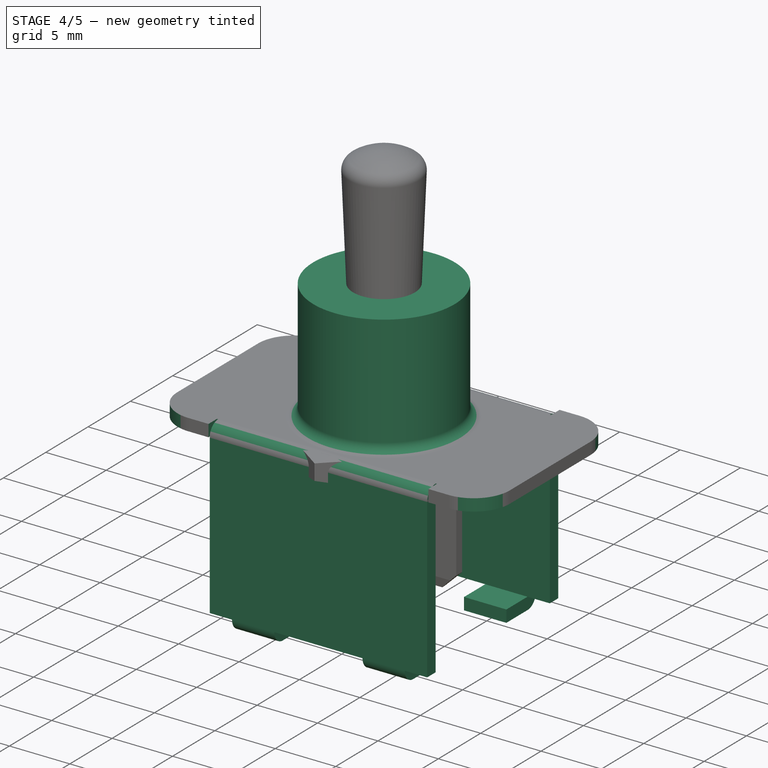
[diagram: stage 4 of 5 — iso view after this stage's code; geometry added in this stage tinted green]
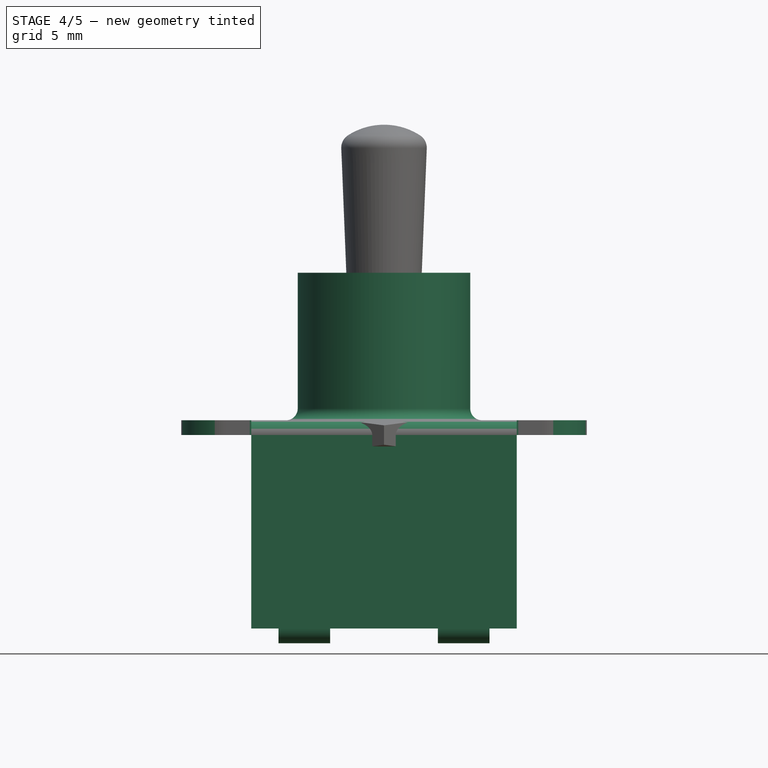
[diagram: stage 4 of 5 — front view after this stage's code; geometry added in this stage tinted green]
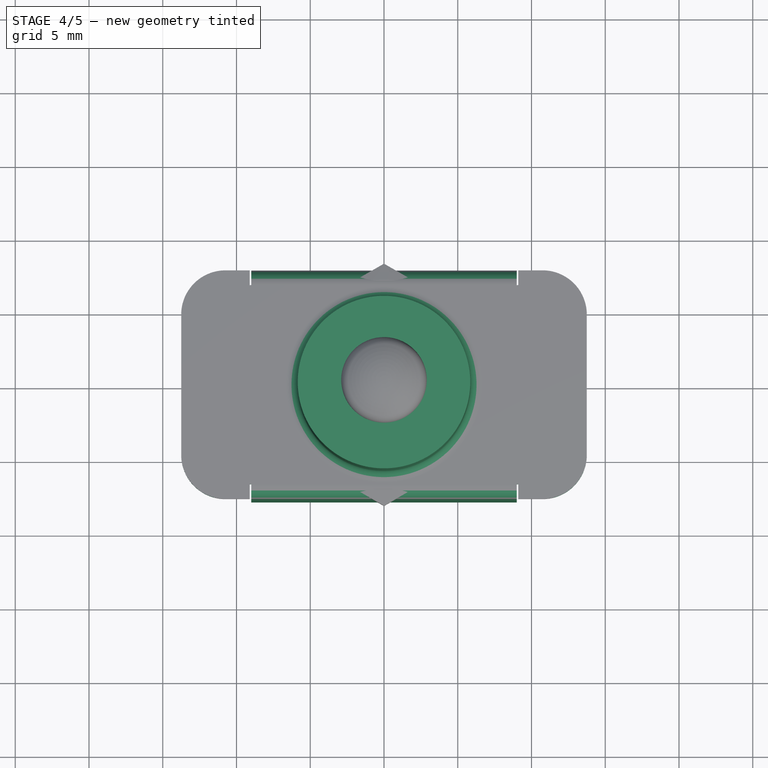
[diagram: stage 4 of 5 — top view after this stage's code; geometry added in this stage tinted green]
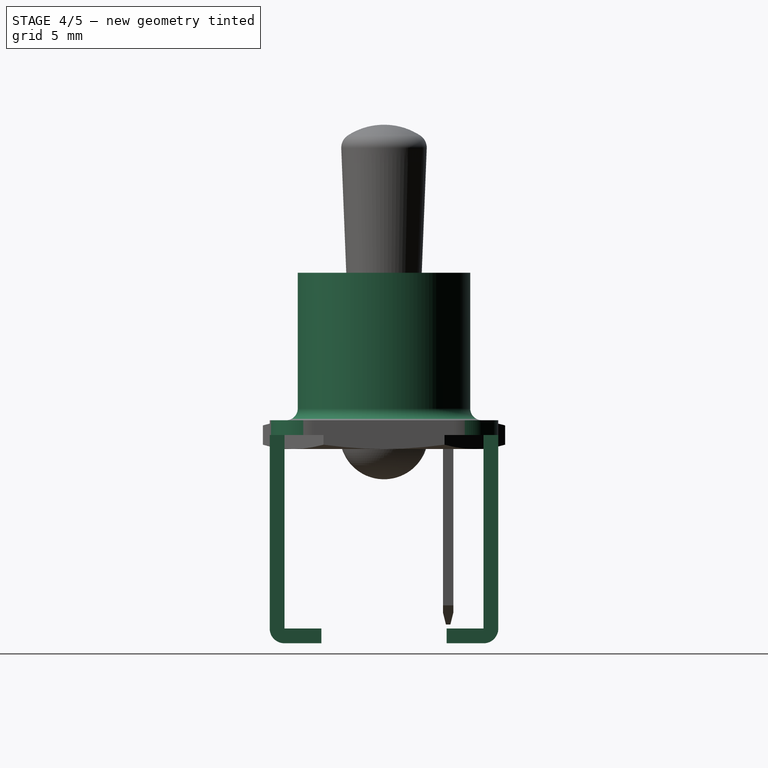
[diagram: stage 4 of 5 — right view after this stage's code; geometry added in this stage tinted green]
FEATURE [PartDesign::Fillet] Fillet001
  Base = -> Pad001 [Edge8,Edge5,Edge2,Edge1]
  BaseFeature = -> Pad001
  Radius = 3
  SupportTransform = false
  UseAllEdges = false
FEATURE [Sketcher::SketchObject] Sketch004
  ExternalGeometry = -> [Fillet001]
  FullyConstrained = true
  MapMode = 5
  Placement = pos=(0,0,0) rot=(1,0,0;3.14159rad)
  Support = -> [Fillet001]
  sketch-geometry (8):
    g0: LineSegment StartX=-9 StartY=7.75 StartZ=0 EndX=9 EndY=7.75 EndZ=0
    g1: LineSegment StartX=9 StartY=7.75 StartZ=0 EndX=9 EndY=6.75 EndZ=0
    g2: LineSegment StartX=9 StartY=6.75 StartZ=0 EndX=-9 EndY=6.75 EndZ=0
    g3: LineSegment StartX=-9 StartY=6.75 StartZ=0 EndX=-9 EndY=7.75 EndZ=0
    g4: LineSegment StartX=-9 StartY=-7.75 StartZ=0 EndX=9 EndY=-7.75 EndZ=0
    g5: LineSegment StartX=9 StartY=-7.75 StartZ=0 EndX=9 EndY=-6.75 EndZ=0
    g6: LineSegment StartX=9 StartY=-6.75 StartZ=0 EndX=-9 EndY=-6.75 EndZ=0
    g7: LineSegment StartX=-9 StartY=-6.75 StartZ=0 EndX=-9 EndY=-7.75 EndZ=0
  constraints (22):
    c: Coincident(g0,g1)
    c: Coincident(g1,g2)
    c: Coincident(g2,g3)
    c: Coincident(g3,g0)
    c: Horizontal(g0)
    c: Horizontal(g2)
    c: Vertical(g1)
    c: Vertical(g3)
    c: PointOnObject(g0,g-4)
    c: Coincident(g4,g5)
    c: Coincident(g5,g6)
    c: Coincident(g6,g7)
    c: Coincident(g7,g4)
    c: Horizontal(g4)
    c: Vertical(g5)
    c: Vertical(g7)
    c: PointOnObject(g4,g-3)
    c: Symmetric(g5,g6,g-2)
    c: Symmetric(g6,g2,g-1)
    c: Equal(g2,g6)
    c: DistanceY(g1,g1) = 1
    c: DistanceX(g0,g0) = 18
FEATURE [PartDesign::Pad] Pad002
  BaseFeature = -> Fillet001
  Direction = (0,0,-1)
  Length = 13.12
  Length2 = 10
  Profile = -> Sketch004
  ReferenceAxis = -> Sketch004 [N_Axis]
  Refine = true
  Type = 0
FEATURE [Sketcher::SketchObject] Sketch005
  ExternalGeometry = -> [Pad002]
  FullyConstrained = true
  MapMode = 5
  Placement = pos=(0,0,0) rot=(1,0,0;3.14159rad)
  Support = -> [Pad002]
  sketch-geometry (16):
    g0: LineSegment StartX=9 StartY=7.75 StartZ=0 EndX=9.1 EndY=7.75 EndZ=0
    g1: LineSegment StartX=9.1 StartY=7.75 StartZ=0 EndX=9.1 EndY=6.75 EndZ=0
    g2: LineSegment StartX=9.1 StartY=6.75 StartZ=0 EndX=9 EndY=6.75 EndZ=0
    g3: LineSegment StartX=9 StartY=6.75 StartZ=0 EndX=9 EndY=7.75 EndZ=0
    g4: LineSegment StartX=-9 StartY=7.75 StartZ=0 EndX=-9.1 EndY=7.75 EndZ=0
    g5: LineSegment StartX=-9.1 StartY=7.75 StartZ=0 EndX=-9.1 EndY=6.75 EndZ=0
    g6: LineSegment StartX=-9.1 StartY=6.75 StartZ=0 EndX=-9 EndY=6.75 EndZ=0
    g7: LineSegment StartX=-9 StartY=6.75 StartZ=0 EndX=-9 EndY=7.75 EndZ=0
    g8: LineSegment StartX=-9 StartY=-7.75 StartZ=0 EndX=-9.1 EndY=-7.75 EndZ=0
    g9: LineSegment StartX=-9.1 StartY=-7.75 StartZ=0 EndX=-9.1 EndY=-6.75 EndZ=0
    g10: LineSegment StartX=-9.1 StartY=-6.75 StartZ=0 EndX=-9 EndY=-6.75 EndZ=0
    g11: LineSegment StartX=-9 StartY=-6.75 StartZ=0 EndX=-9 EndY=-7.75 EndZ=0
    g12: LineSegment StartX=9 StartY=-7.75 StartZ=0 EndX=9.1 EndY=-7.75 EndZ=0
    g13: LineSegment StartX=9.1 StartY=-7.75 StartZ=0 EndX=9.1 EndY=-6.75 EndZ=0
    g14: LineSegment StartX=9.1 StartY=-6.75 StartZ=0 EndX=9 EndY=-6.75 EndZ=0
    g15: LineSegment StartX=9 StartY=-6.75 StartZ=0 EndX=9 EndY=-7.75 EndZ=0
  constraints (44):
    c: Coincident(g0,g1)
    c: Coincident(g1,g2)
    c: Coincident(g2,g3)
    c: Coincident(g3,g0)
    c: Horizontal(g0)
    c: Horizontal(g2)
    c: Vertical(g1)
    c: Vertical(g3)
    c: Coincident(g0,g-3)
    c: Coincident(g4,g5)
    c: Coincident(g5,g6)
    c: Coincident(g6,g7)
    c: Coincident(g7,g4)
    c: Horizontal(g4)
    c: Horizontal(g6)
    c: Vertical(g5)
    c: Vertical(g7)
    c: Coincident(g4,g-4)
    c: Coincident(g8,g9)
    c: Coincident(g9,g10)
    c: Coincident(g10,g11)
    c: Coincident(g11,g8)
    c: Horizontal(g8)
    c: Horizontal(g10)
    c: Vertical(g9)
    c: Vertical(g11)
    c: Coincident(g8,g-5)
    c: Coincident(g12,g13)
    c: Coincident(g13,g14)
    c: Coincident(g14,g15)
    c: Coincident(g15,g12)
    c: Horizontal(g12)
    c: Horizontal(g14)
    c: Vertical(g13)
    c: Vertical(g15)
    c: Coincident(g12,g-6)
    c: Equal(g14,g2)
    c: Equal(g2,g6)
    c: Equal(g6,g10)
    c: Equal(g13,g9)
    c: Equal(g9,g5)
    c: Equal(g5,g1)
    c: DistanceX(g0,g0) = 0.1
    c: DistanceY(g1,g1) = 1
FEATURE [PartDesign::Pocket] Pocket002
  BaseFeature = -> Pad002
  Direction = (0,0,1)
  Length = 5
  Length2 = 5
  Profile = -> Sketch005
  ReferenceAxis = -> Sketch005 [N_Axis]
  Type = 0
FEATURE [PartDesign::Fillet] Fillet002
  Base = -> Pocket002 [Edge66,Edge69]
  BaseFeature = -> Pocket002
  Radius = 1
  SupportTransform = false
  UseAllEdges = false
FEATURE [Sketcher::SketchObject] Sketch006
  ExternalGeometry = -> [Fillet002]
  FullyConstrained = true
  MapMode = 5
  Placement = pos=(0,0,-13.12) rot=(1,0,0;3.14159rad)
  Support = -> [Fillet002]
  sketch-geometry (16):
    g0: LineSegment StartX=-7.15 StartY=-4.25 StartZ=0 EndX=-3.65 EndY=-4.25 EndZ=0
    g1: LineSegment StartX=-3.65 StartY=-4.25 StartZ=0 EndX=-3.65 EndY=-7.75 EndZ=0
    g2: LineSegment StartX=-3.65 StartY=-7.75 StartZ=0 EndX=-7.15 EndY=-7.75 EndZ=0
    g3: LineSegment StartX=-7.15 StartY=-7.75 StartZ=0 EndX=-7.15 EndY=-4.25 EndZ=0
    g4: LineSegment StartX=3.65 StartY=-4.25 StartZ=0 EndX=7.15 EndY=-4.25 EndZ=0
    g5: LineSegment StartX=7.15 StartY=-4.25 StartZ=0 EndX=7.15 EndY=-7.75 EndZ=0
    g6: LineSegment StartX=7.15 StartY=-7.75 StartZ=0 EndX=3.65 EndY=-7.75 EndZ=0
    g7: LineSegment StartX=3.65 StartY=-7.75 StartZ=0 EndX=3.65 EndY=-4.25 EndZ=0
    g8: LineSegment StartX=3.65 StartY=7.75 StartZ=0 EndX=7.15 EndY=7.75 EndZ=0
    g9: LineSegment StartX=7.15 StartY=7.75 StartZ=0 EndX=7.15 EndY=4.25 EndZ=0
    g10: LineSegment StartX=7.15 StartY=4.25 StartZ=0 EndX=3.65 EndY=4.25 EndZ=0
    g11: LineSegment StartX=3.65 StartY=4.25 StartZ=0 EndX=3.65 EndY=7.75 EndZ=0
    g12: LineSegment StartX=-7.15 StartY=7.75 StartZ=0 EndX=-3.65 EndY=7.75 EndZ=0
    g13: LineSegment StartX=-3.65 StartY=7.75 StartZ=0 EndX=-3.65 EndY=4.25 EndZ=0
    g14: LineSegment StartX=-3.65 StartY=4.25 StartZ=0 EndX=-7.15 EndY=4.25 EndZ=0
    g15: LineSegment StartX=-7.15 StartY=4.25 StartZ=0 EndX=-7.15 EndY=7.75 EndZ=0
  constraints (47):
    c: Coincident(g0,g1)
    c: Coincident(g1,g2)
    c: Coincident(g2,g3)
    c: Coincident(g3,g0)
    c: Horizontal(g0)
    c: Horizontal(g2)
    c: Vertical(g1)
    c: Vertical(g3)
    c: Coincident(g4,g5)
    c: Coincident(g5,g6)
    c: Coincident(g6,g7)
    c: Coincident(g7,g4)
    c: Horizontal(g4)
    c: Horizontal(g6)
    c: Vertical(g5)
    c: Vertical(g7)
    c: PointOnObject(g5,g-4)
    c: Coincident(g8,g9)
    c: Coincident(g9,g10)
    c: Coincident(g10,g11)
    c: Coincident(g11,g8)
    c: Horizontal(g8)
    c: Horizontal(g10)
    c: Vertical(g9)
    c: Vertical(g11)
    c: Coincident(g12,g13)
    c: Coincident(g13,g14)
    c: Coincident(g14,g15)
    c: Coincident(g15,g12)
    c: Horizontal(g12)
    c: Horizontal(g14)
    c: Vertical(g13)
    c: Vertical(g15)
    c: Symmetric(g12,g8,g-2)
    c: Equal(g12,g8)
    c: Equal(g8,g2)
    c: Equal(g2,g6)
    c: Vertical(g0,g13)
    c: Vertical(g10,g4)
    c: DistanceX(g12,g12) = 3.5
    c: DistanceX(g12,g8) = 7.3
    c: PointOnObject(g8,g-3)
    c: PointOnObject(g1,g-4)
    c: Equal(g1,g7)
    c: Equal(g13,g11)
    c: Equal(g11,g7)
    c: DistanceY(g0,g14) = 8.5
FEATURE [PartDesign::Pad] Pad003
  BaseFeature = -> Fillet002
  Direction = (0,0,-1)
  Length = 1
  Length2 = 10
  Profile = -> Sketch006
  ReferenceAxis = -> Sketch006 [N_Axis]
  Refine = true
  Type = 0
FEATURE [PartDesign::Fillet] Fillet003
  Base = -> Pad003 [Edge108,Edge118,Edge141,Edge133]
  BaseFeature = -> Pad003
  Radius = 1
  SupportTransform = false
  UseAllEdges = false
FEATURE [Sketcher::SketchObject] Sketch007
  FullyConstrained = true
  MapMode = 5
  Placement = pos=(0,0,1) rot=(0,0,1;0rad)
  Support = -> [Fillet003]
  sketch-geometry (1):
    g0: Circle CenterX=0 CenterY=0 CenterZ=0 NormalX=0 NormalY=0 NormalZ=1 AngleXU=0 Radius=5.85
  constraints (2):
    c: Coincident(g0,g-1)
    c: Diameter(g0) = 11.7
FEATURE [PartDesign::Pad] Pad004
  BaseFeature = -> Fillet003
  Direction = (0,0,1)
  Length = 10
  Length2 = 10
  Profile = -> Sketch007
  ReferenceAxis = -> Sketch007 [N_Axis]
  Type = 0
FEATURE [PartDesign::Fillet] Fillet004
  Base = -> Pad004 [Edge89]
  BaseFeature = -> Pad004
  Radius = 0.8
  SupportTransform = false
  UseAllEdges = false
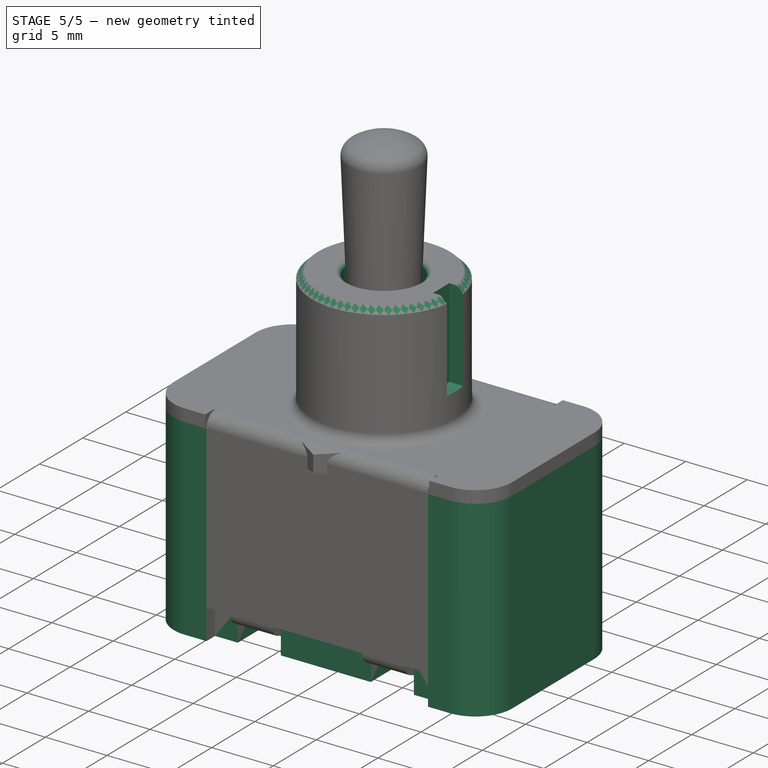
[diagram: stage 5 of 5 — iso view after this stage's code; geometry added in this stage tinted green]
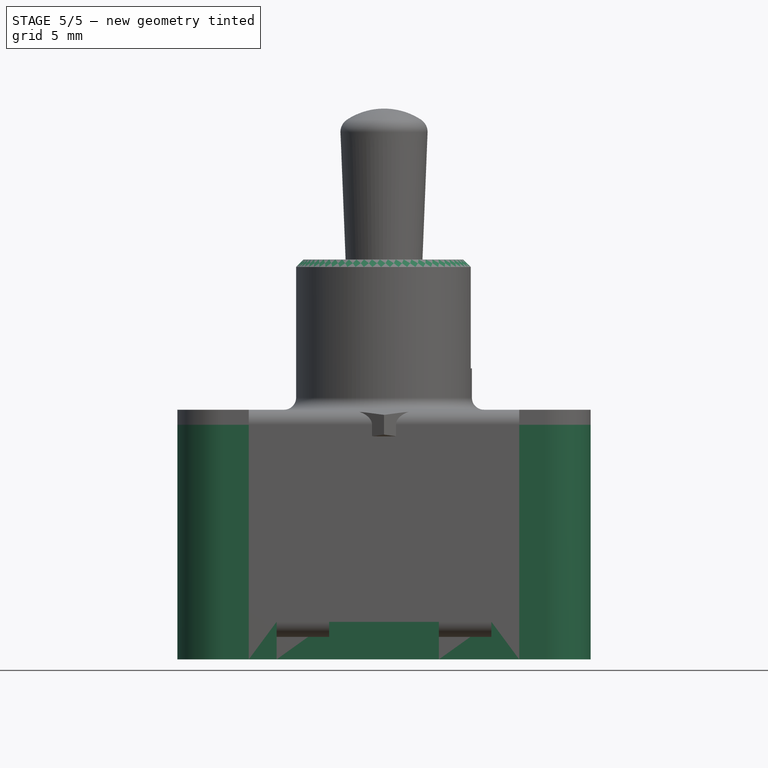
[diagram: stage 5 of 5 — front view after this stage's code; geometry added in this stage tinted green]
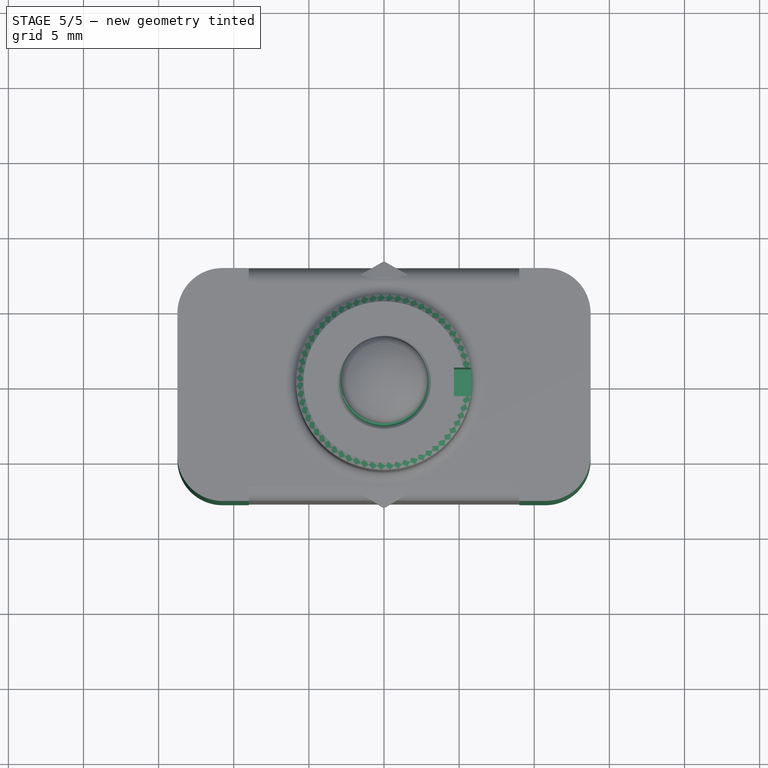
[diagram: stage 5 of 5 — top view after this stage's code; geometry added in this stage tinted green]
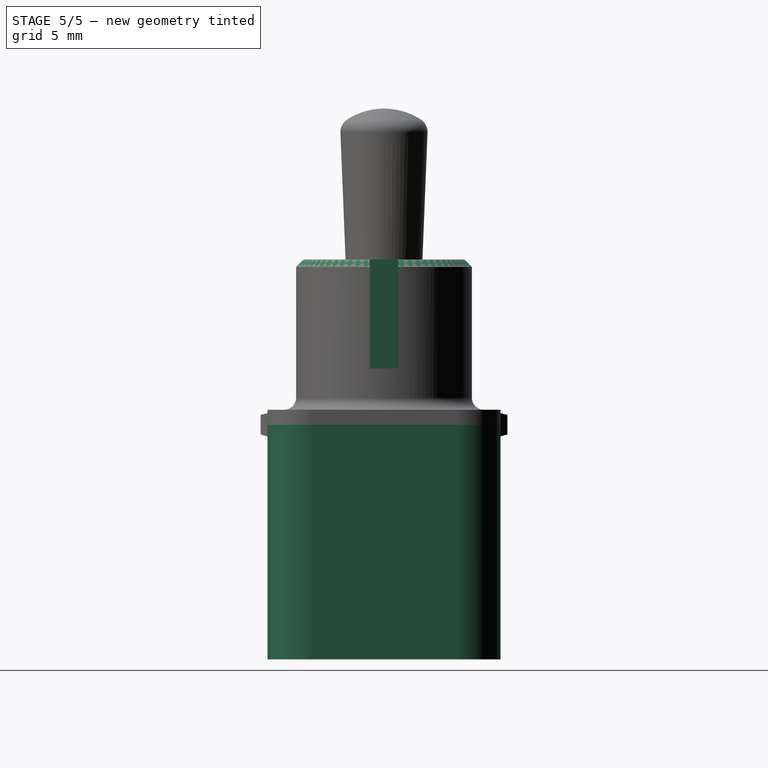
[diagram: stage 5 of 5 — right view after this stage's code; geometry added in this stage tinted green]
FEATURE [Sketcher::SketchObject] Sketch
  FullyConstrained = true
  MapMode = 5
  Support = -> [XY_Plane]
  sketch-geometry (4):
    g0: LineSegment StartX=-13.75 StartY=7.75 StartZ=0 EndX=13.75 EndY=7.75 EndZ=0
    g1: LineSegment StartX=13.75 StartY=7.75 StartZ=0 EndX=13.75 EndY=-7.75 EndZ=0
    g2: LineSegment StartX=13.75 StartY=-7.75 StartZ=0 EndX=-13.75 EndY=-7.75 EndZ=0
    g3: LineSegment StartX=-13.75 StartY=-7.75 StartZ=0 EndX=-13.75 EndY=7.75 EndZ=0
  constraints (11):
    c: Coincident(g0,g1)
    c: Coincident(g1,g2)
    c: Coincident(g2,g3)
    c: Coincident(g3,g0)
    c: Horizontal(g0)
    c: Horizontal(g2)
    c: Vertical(g1)
    c: Vertical(g3)
    c: Symmetric(g0,g1,g-1)
    c: DistanceX(g0,g0) = 27.5
    c: DistanceY(g3,g3) = 15.5
FEATURE [PartDesign::Pad] Pad
  Direction = (0,0,1)
  Length = 15.62
  Length2 = 10
  Profile = -> Sketch
  ReferenceAxis = -> Sketch [N_Axis]
  Reversed = true
  Type = 0
FEATURE [PartDesign::Fillet] Fillet
  Base = -> Pad [Edge8,Edge5,Edge2,Edge1]
  BaseFeature = -> Pad
  Radius = 3
  SupportTransform = false
  UseAllEdges = false
FEATURE [Sketcher::SketchObject] Sketch001
  ExternalGeometry = -> [Fillet]
  FullyConstrained = true
  MapMode = 5
  Placement = pos=(0,0,-15.62) rot=(1,0,0;3.14159rad)
  Support = -> [Fillet]
  sketch-geometry (8):
    g0: LineSegment StartX=-9 StartY=8.75 StartZ=0 EndX=9 EndY=8.75 EndZ=0
    g1: LineSegment StartX=9 StartY=8.75 StartZ=0 EndX=9 EndY=6.75 EndZ=0
    g2: LineSegment StartX=9 StartY=6.75 StartZ=0 EndX=-9 EndY=6.75 EndZ=0
    g3: LineSegment StartX=-9 StartY=6.75 StartZ=0 EndX=-9 EndY=8.75 EndZ=0
    g4: LineSegment StartX=-9 StartY=-6.75 StartZ=0 EndX=9 EndY=-6.75 EndZ=0
    g5: LineSegment StartX=9 StartY=-6.75 StartZ=0 EndX=9 EndY=-8.75 EndZ=0
    g6: LineSegment StartX=9 StartY=-8.75 StartZ=0 EndX=-9 EndY=-8.75 EndZ=0
    g7: LineSegment StartX=-9 StartY=-8.75 StartZ=0 EndX=-9 EndY=-6.75 EndZ=0
  constraints (22):
    c: Coincident(g0,g1)
    c: Coincident(g1,g2)
    c: Coincident(g2,g3)
    c: Coincident(g3,g0)
    c: Horizontal(g0)
    c: Vertical(g1)
    c: Vertical(g3)
    c: Coincident(g4,g5)
    c: Coincident(g5,g6)
    c: Coincident(g6,g7)
    c: Coincident(g7,g4)
    c: Horizontal(g4)
    c: Horizontal(g6)
    c: Vertical(g5)
    c: Vertical(g7)
    c: Symmetric(g4,g1,g-1)
    c: Symmetric(g1,g2,g-2)
    c: Equal(g4,g2)
    c: Equal(g1,g5)
    c: DistanceX(g0,g0) = 18
    c: DistanceY(g3,g3) = 2
    c: DistanceY(g1,g-3) = 1
FEATURE [PartDesign::Pocket] Pocket
  BaseFeature = -> Fillet
  Direction = (0,0,1)
  Length = 5
  Length2 = 5
  Profile = -> Sketch001
  ReferenceAxis = -> Sketch001 [N_Axis]
  Type = 1
FEATURE [Sketcher::SketchObject] Sketch002
  FullyConstrained = true
  MapMode = 5
  Placement = pos=(0,0,-15.62) rot=(1,0,0;3.14159rad)
  Support = -> [Pocket]
  sketch-geometry (28):
    g0: ArcOfCircle CenterX=8.25 CenterY=0 CenterZ=0 NormalX=0 NormalY=0 NormalZ=1 AngleXU=0 Radius=2.5 StartAngle=1.5708 EndAngle=4.71239
    g1: LineSegment StartX=8.25 StartY=-2.5 StartZ=0 EndX=12.95 EndY=-2.5 EndZ=0
    g2: LineSegment StartX=12.95 StartY=2.5 StartZ=0 EndX=8.25 EndY=2.5 EndZ=0
    g3: ArcOfCircle CenterX=-8.25 CenterY=0 CenterZ=0 NormalX=0 NormalY=0 NormalZ=1 AngleXU=0 Radius=2.5 StartAngle=4.71239 EndAngle=7.85398
    g4: LineSegment StartX=-8.25 StartY=2.5 StartZ=0 EndX=-12.95 EndY=2.5 EndZ=0
    g5: LineSegment StartX=-12.95 StartY=-2.5 StartZ=0 EndX=-8.25 EndY=-2.5 EndZ=0
    g6: LineSegment StartX=-12.95 StartY=2.5 StartZ=0 EndX=-12.95 EndY=-2.5 EndZ=0
    g7: LineSegment StartX=12.95 StartY=2.5 StartZ=0 EndX=12.95 EndY=-2.5 EndZ=0
    g8: ArcOfCircle CenterX=0 CenterY=0 CenterZ=0 NormalX=0 NormalY=0 NormalZ=1 AngleXU=0 Radius=2.5 StartAngle=-9e-16 EndAngle=3.14159
    g9: LineSegment StartX=-2.5 StartY=3e-16 StartZ=0 EndX=-2.5 EndY=-4.7 EndZ=0
    g10: LineSegment StartX=2.5 StartY=-4.7 StartZ=0 EndX=2.5 EndY=-1.8e-15 EndZ=0
    g11: LineSegment StartX=-2.5 StartY=-4.7 StartZ=0 EndX=2.5 EndY=-4.7 EndZ=0
    g12: LineSegment StartX=-7.15 StartY=8.25 StartZ=0 EndX=-3.65 EndY=8.25 EndZ=0
    g13: LineSegment StartX=-3.65 StartY=8.25 StartZ=0 EndX=-3.65 EndY=4.25 EndZ=0
    g14: LineSegment StartX=-3.65 StartY=4.25 StartZ=0 EndX=-7.15 EndY=4.25 EndZ=0
    g15: LineSegment StartX=-7.15 StartY=4.25 StartZ=0 EndX=-7.15 EndY=8.25 EndZ=0
    g16: LineSegment StartX=3.65 StartY=8.25 StartZ=0 EndX=7.15 EndY=8.25 EndZ=0
    g17: LineSegment StartX=7.15 StartY=8.25 StartZ=0 EndX=7.15 EndY=4.25 EndZ=0
    g18: LineSegment StartX=7.15 StartY=4.25 StartZ=0 EndX=3.65 EndY=4.25 EndZ=0
    g19: LineSegment StartX=3.65 StartY=4.25 StartZ=0 EndX=3.65 EndY=8.25 EndZ=0
    g20: LineSegment StartX=-7.15 StartY=-4.25 StartZ=0 EndX=-3.65 EndY=-4.25 EndZ=0
    g21: LineSegment StartX=-3.65 StartY=-4.25 StartZ=0 EndX=-3.65 EndY=-8.25 EndZ=0
    g22: LineSegment StartX=-3.65 StartY=-8.25 StartZ=0 EndX=-7.15 EndY=-8.25 EndZ=0
    g23: LineSegment StartX=-7.15 StartY=-8.25 StartZ=0 EndX=-7.15 EndY=-4.25 EndZ=0
    g24: LineSegment StartX=3.65 StartY=-4.25 StartZ=0 EndX=7.15 EndY=-4.25 EndZ=0
    g25: LineSegment StartX=7.15 StartY=-4.25 StartZ=0 EndX=7.15 EndY=-8.25 EndZ=0
    g26: LineSegment StartX=7.15 StartY=-8.25 StartZ=0 EndX=3.65 EndY=-8.25 EndZ=0
    g27: LineSegment StartX=3.65 StartY=-8.25 StartZ=0 EndX=3.65 EndY=-4.25 EndZ=0
  constraints (76):
    c: Tangent(g0,g1) = -1.5708
    c: Tangent(g2,g0) = -1.5708
    c: Horizontal(g1)
    c: Tangent(g3,g4) = -1.5708
    c: Tangent(g5,g3) = -1.5708
    c: PointOnObject(g3,g-1)
    c: Horizontal(g4)
    c: Horizontal(g2)
    c: Horizontal(g5)
    c: Coincident(g6,g4)
    c: Coincident(g6,g5)
    c: Vertical(g6)
    c: Coincident(g7,g2)
    c: Coincident(g7,g1)
    c: Vertical(g7)
    c: Symmetric(g0,g3,g-2)
    c: Equal(g3,g0)
    c: Equal(g2,g4)
    c: DistanceY(g6,g6) = 5
    c: DistanceX(g4,g2) = 25.9
    c: DistanceX(g3,g0) = 16.5
    c: Tangent(g8,g9) = -1.5708
    c: Tangent(g10,g8) = -1.5708
    c: Coincident(g8,g-1)
    c: Vertical(g9)
    c: Vertical(g10)
    c: Coincident(g11,g9)
    c: Coincident(g11,g10)
    c: Horizontal(g11)
    c: Equal(g11,g7)
    c: Equal(g10,g2)
    c: Coincident(g12,g13)
    c: Coincident(g13,g14)
    c: Coincident(g14,g15)
    c: Coincident(g15,g12)
    c: Horizontal(g12)
    c: Horizontal(g14)
    c: Vertical(g13)
    c: Vertical(g15)
    c: Coincident(g16,g17)
    c: Coincident(g17,g18)
    c: Coincident(g18,g19)
    c: Coincident(g19,g16)
    c: Horizontal(g16)
    c: Horizontal(g18)
    c: Vertical(g17)
    c: Vertical(g19)
    c: Coincident(g20,g21)
    c: Coincident(g21,g22)
    c: Coincident(g22,g23)
    c: Coincident(g23,g20)
    c: Horizontal(g20)
    c: Horizontal(g22)
    c: Vertical(g21)
    c: Vertical(g23)
    c: Coincident(g24,g25)
    c: Coincident(g25,g26)
    c: Coincident(g26,g27)
    c: Coincident(g27,g24)
    c: Horizontal(g24)
    c: Horizontal(g26)
    c: Vertical(g25)
    c: Vertical(g27)
    c: Symmetric(g24,g20,g-2)
    c: Symmetric(g13,g18,g-2)
    c: Symmetric(g18,g24,g-1)
    c: Equal(g18,g14)
    c: Equal(g14,g20)
    c: Equal(g20,g24)
    c: Equal(g13,g19)
    c: Equal(g19,g27)
    c: Equal(g27,g21)
    c: DistanceX(g12,g12) = 3.5
    c: DistanceX(g12,g16) = 7.3
    c: DistanceY(g24,g17) = 8.5
    c: DistanceY(g25,g25) = 4
FEATURE [PartDesign::Pocket] Pocket001
  BaseFeature = -> Pocket
  Direction = (0,0,1)
  Length = 2.5
  Length2 = 5
  Profile = -> Sketch002
  ReferenceAxis = -> Sketch002 [N_Axis]
  Type = 0
FEATURE [PartDesign::Chamfer] Chamfer
  Angle = 45
  Base = -> Fillet004 [Edge69]
  BaseFeature = -> Fillet004
  ChamferType = 0
  FlipDirection = false
  Size = 0.5
  Size2 = 1
  SupportTransform = false
  UseAllEdges = false
FEATURE [Sketcher::SketchObject] Sketch008
  FullyConstrained = true
  MapMode = 5
  Placement = pos=(0,0,11) rot=(0,0,1;0rad)
  Support = -> [Chamfer]
  sketch-geometry (1):
    g0: Circle CenterX=0 CenterY=0 CenterZ=0 NormalX=0 NormalY=0 NormalZ=1 AngleXU=0 Radius=2.875
  constraints (2):
    c: Coincident(g0,g-1)
    c: Diameter(g0) = 5.75
FEATURE [PartDesign::Pocket] Pocket003
  BaseFeature = -> Chamfer
  Direction = (0,0,-1)
  Length = 5
  Length2 = 5
  Profile = -> Sketch008
  ReferenceAxis = -> Sketch008 [N_Axis]
  Type = 0
FEATURE [Sketcher::SketchObject] Sketch009
  FullyConstrained = true
  MapMode = 5
  Placement = pos=(0,0,11) rot=(0,0,1;0rad)
  Support = -> [Pocket003]
  sketch-geometry (4):
    g0: LineSegment StartX=4.65 StartY=0.95 StartZ=0 EndX=6.65 EndY=0.95 EndZ=0
    g1: LineSegment StartX=6.65 StartY=0.95 StartZ=0 EndX=6.65 EndY=-0.95 EndZ=0
    g2: LineSegment StartX=6.65 StartY=-0.95 StartZ=0 EndX=4.65 EndY=-0.95 EndZ=0
    g3: LineSegment StartX=4.65 StartY=-0.95 StartZ=0 EndX=4.65 EndY=0.95 EndZ=0
  constraints (11):
    c: Coincident(g0,g1)
    c: Coincident(g1,g2)
    c: Coincident(g2,g3)
    c: Coincident(g3,g0)
    c: Horizontal(g0)
    c: Horizontal(g2)
    c: Vertical(g1)
    c: Symmetric(g0,g2,g-1)
    c: DistanceY(g3,g3) = 1.9
    c: DistanceX(g-1,g0) = 4.65
    c: DistanceX(g0,g0) = 2
FEATURE [PartDesign::Pocket] Pocket004
  BaseFeature = -> Pocket003
  Direction = (0,0,-1)
  Length = 7.25
  Length2 = 5
  Profile = -> Sketch009
  ReferenceAxis = -> Sketch009 [N_Axis]
  Type = 0
FEATURE [PartDesign::Chamfer] Chamfer001
  Angle = 45
  Base = -> Pocket004 [Edge41]
  BaseFeature = -> Pocket004
  ChamferType = 0
  FlipDirection = false
  Size = 0.25
  Size2 = 1
  SupportTransform = false
  UseAllEdges = false
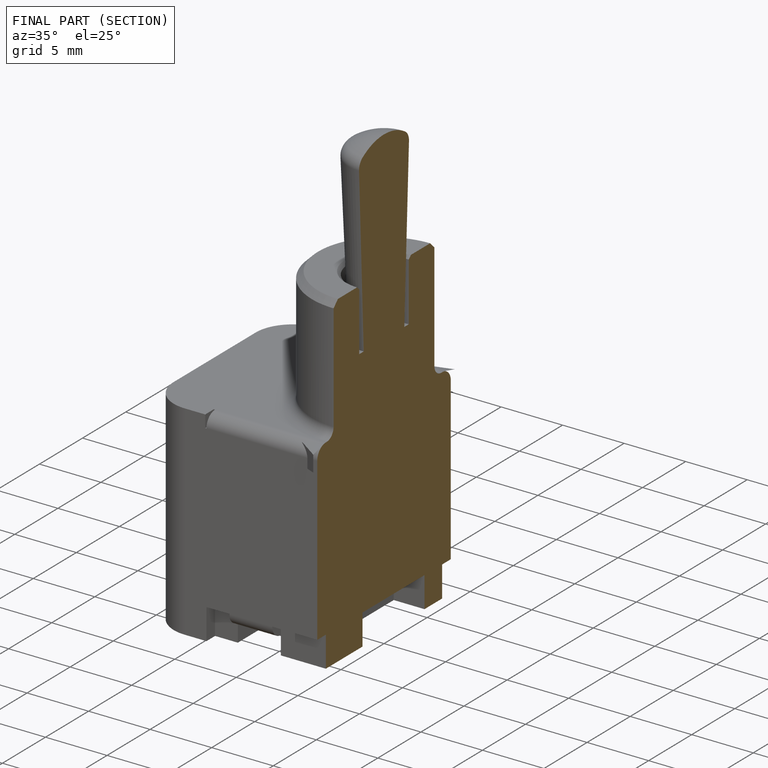
[diagram: finished part — half-section view (interior)]
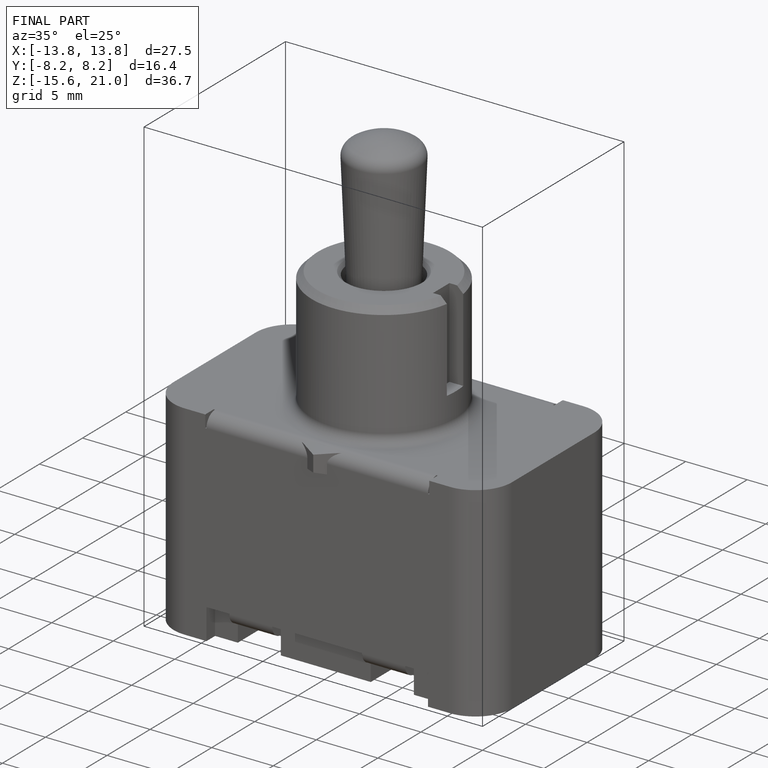
[diagram: finished part — iso view with bounding-box wireframe]
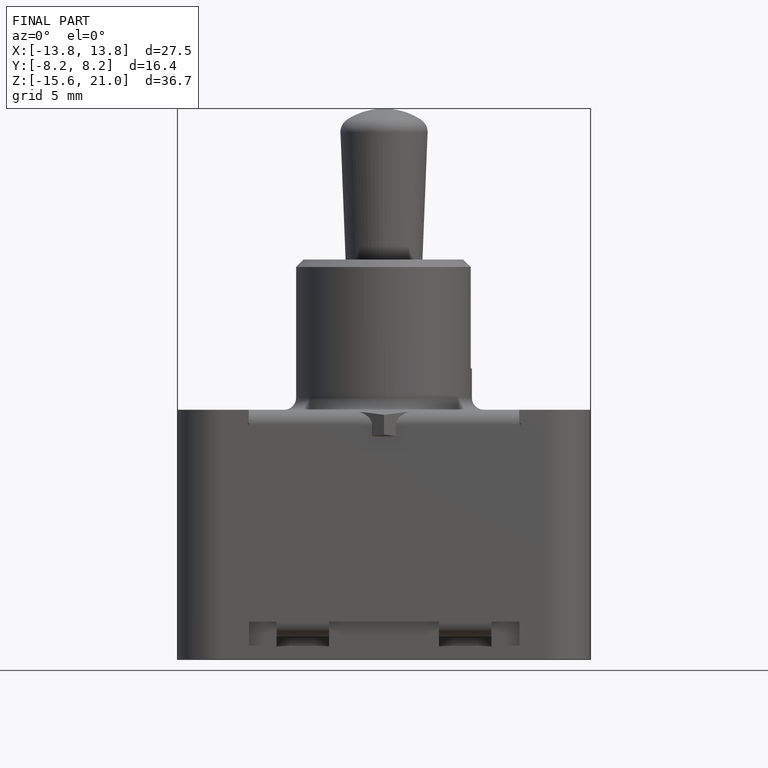
[diagram: finished part — front view with bounding-box wireframe]
